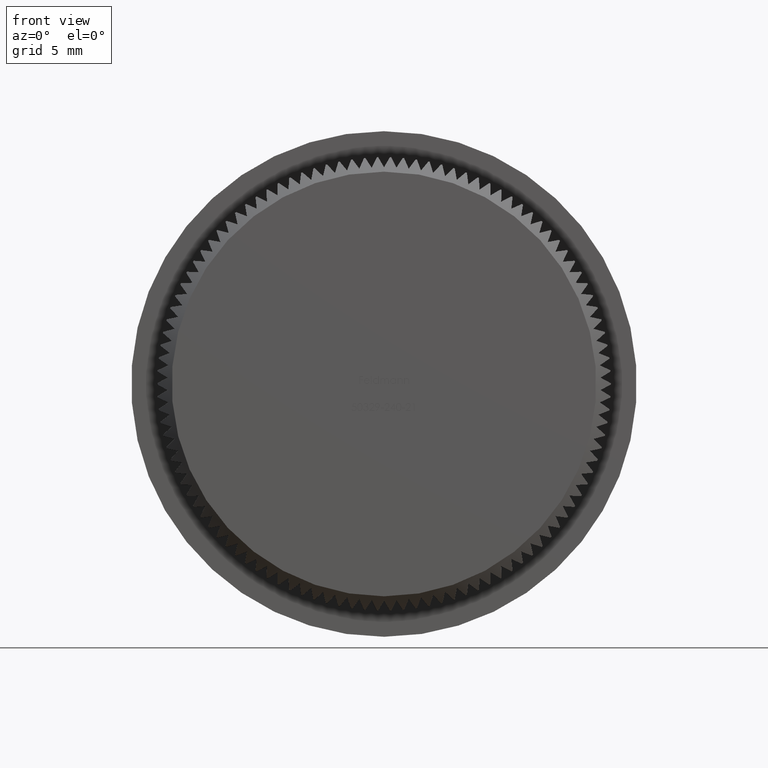
[diagram: clean part render]
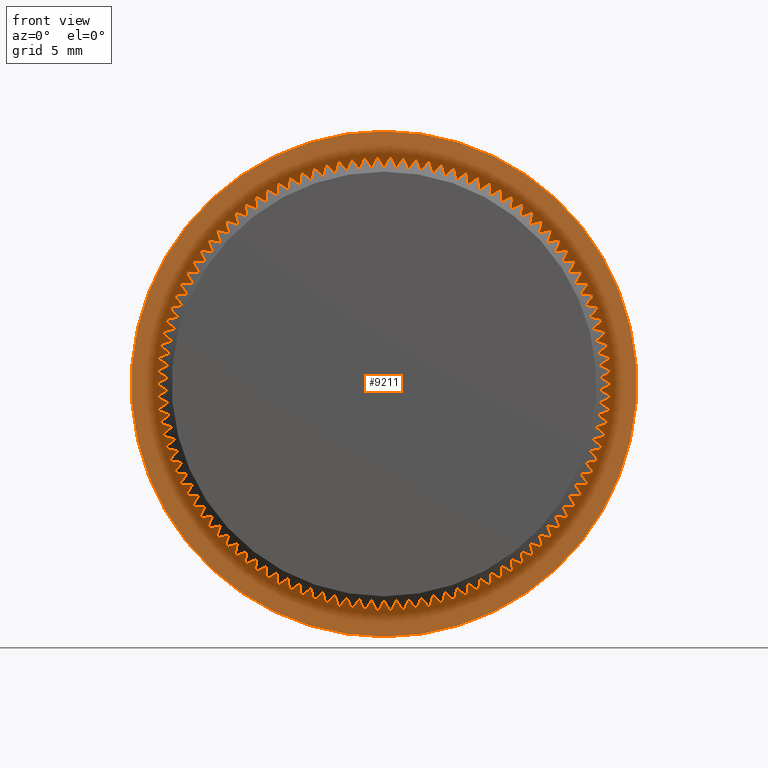
[diagram: same view with one face highlighted and labeled with its STEP entity id]
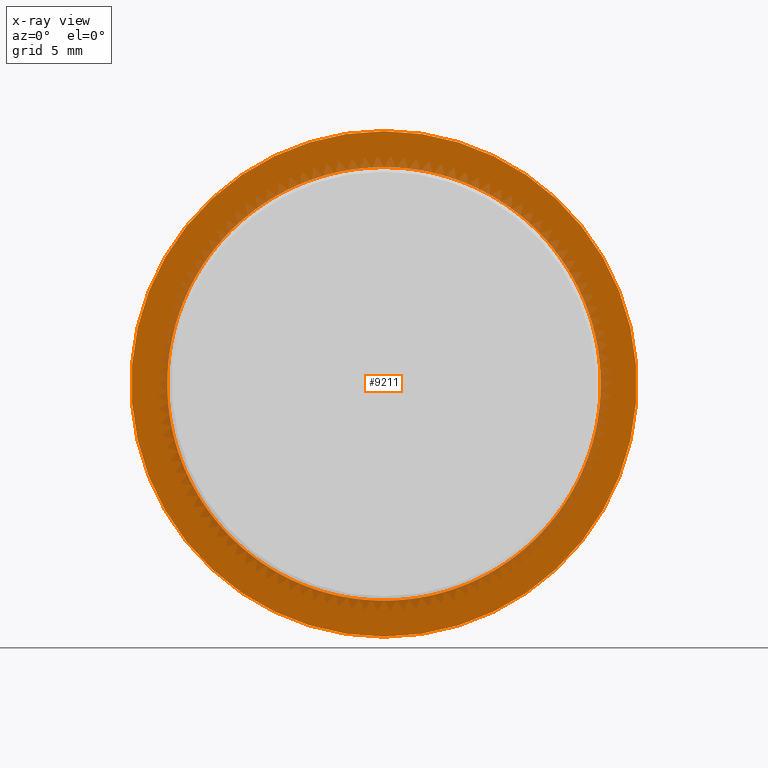
[diagram: x-ray of the same camera — body ghosted, the highlighted face saturated]
A machine part, front view. The second image highlights one B-rep face of the part: STEP entity #9211.
The next image is the same camera in x-ray: the body ghosted, the highlighted face saturated — about 15% of this face is hidden behind the body in this view.
In plain terms, the highlighted planar face has unit normal (0, -1, -0).
Its self-contained STEP definition (entity closure, byte-faithful):
#65 = CIRCLE ( 'NONE', #4644, 15.00000000000000000 ) ;
#75 = CARTESIAN_POINT ( 'NONE',  ( 0.0000000000000000000, 8.000000000000000000, 0.0000000000000000000 ) ) ;
#83 = DIRECTION ( 'NONE',  ( 0.0000000000000000000, 0.0000000000000000000, -1.000000000000000000 ) ) ;
#93 = AXIS2_PLACEMENT_3D ( 'NONE', #27439, #10124, #12365 ) ;
#94 = VERTEX_POINT ( 'NONE', #7247 ) ;
#106 = CARTESIAN_POINT ( 'NONE',  ( 0.0000000000000000000, 8.000000000000000000, 0.0000000000000000000 ) ) ;
#109 = DIRECTION ( 'NONE',  ( -0.0000000000000000000, -1.000000000000000000, -0.0000000000000000000 ) ) ;
#121 = EDGE_CURVE ( 'NONE', #16577, #16419, #65, .T. ) ;
#139 = CARTESIAN_POINT ( 'NONE',  ( 0.0000000000000000000, 8.000000000000000000, 0.0000000000000000000 ) ) ;
#153 = DIRECTION ( 'NONE',  ( -0.0000000000000000000, -1.000000000000000000, -0.0000000000000000000 ) ) ;
#155 = ORIENTED_EDGE ( 'NONE', *, *, #22793, .F. ) ;
#224 = DIRECTION ( 'NONE',  ( 0.0000000000000000000, 0.0000000000000000000, -1.000000000000000000 ) ) ;
#264 = AXIS2_PLACEMENT_3D ( 'NONE', #27004, #20917, #1320 ) ;
#284 = CARTESIAN_POINT ( 'NONE',  ( -12.38207845444162600, 8.000000000000000000, 8.466648283001511300 ) ) ;
#312 = CIRCLE ( 'NONE', #2868, 15.00000000000000000 ) ;
#317 = CARTESIAN_POINT ( 'NONE',  ( 8.816778784387196300, 8.000000000000000000, -12.13525491562413800 ) ) ;
#398 = DIRECTION ( 'NONE',  ( -0.0000000000000000000, -1.000000000000000000, -0.0000000000000000000 ) ) ;
#459 = DIRECTION ( 'NONE',  ( 0.0000000000000000000, 0.0000000000000000000, -1.000000000000000000 ) ) ;
#472 = ORIENTED_EDGE ( 'NONE', *, *, #2936, .F. ) ;
#478 = ORIENTED_EDGE ( 'NONE', *, *, #27478, .F. ) ;
#491 = AXIS2_PLACEMENT_3D ( 'NONE', #2112, #19181, #21429 ) ;
#530 = AXIS2_PLACEMENT_3D ( 'NONE', #21089, #12389, #25110 ) ;
#546 = CIRCLE ( 'NONE', #8760, 15.00000000000000000 ) ;
#549 = EDGE_CURVE ( 'NONE', #23976, #17939, #3739, .T. ) ;
#557 = CARTESIAN_POINT ( 'NONE',  ( -14.26584774442731900, 7.999999999999994700, 4.635254915624170900 ) ) ;
#619 = VERTEX_POINT ( 'NONE', #18628 ) ;
#656 = DIRECTION ( 'NONE',  ( -0.0000000000000000000, -1.000000000000000000, -0.0000000000000000000 ) ) ;
#741 = VERTEX_POINT ( 'NONE', #26846 ) ;
#795 = AXIS2_PLACEMENT_3D ( 'NONE', #6698, #23667, #13003 ) ;
#799 = AXIS2_PLACEMENT_3D ( 'NONE', #75, #2307, #2395 ) ;
#905 = DIRECTION ( 'NONE',  ( -0.0000000000000000000, -1.000000000000000000, -0.0000000000000000000 ) ) ;
#921 = CIRCLE ( 'NONE', #6379, 15.00000000000000000 ) ;
#945 = DIRECTION ( 'NONE',  ( 0.0000000000000000000, 0.0000000000000000000, -1.000000000000000000 ) ) ;
#981 = DIRECTION ( 'NONE',  ( 0.0000000000000000000, 0.0000000000000000000, -1.000000000000000000 ) ) ;
#988 = CARTESIAN_POINT ( 'NONE',  ( -14.70123841638588900, 7.999999999999998200, -2.978856999686240000 ) ) ;
#1043 = AXIS2_PLACEMENT_3D ( 'NONE', #4427, #6600, #19518 ) ;
#1092 = CARTESIAN_POINT ( 'NONE',  ( -10.14262350411030900, 8.000000000000000000, 11.05111706814605700 ) ) ;
#1093 = DIRECTION ( 'NONE',  ( 0.0000000000000000000, 0.0000000000000000000, -1.000000000000000000 ) ) ;
#1099 = ORIENTED_EDGE ( 'NONE', *, *, #2102, .F. ) ;
#1131 = CARTESIAN_POINT ( 'NONE',  ( 4.225988352621254100, 8.000000000000000000, 14.39239460421751800 ) ) ;
#1150 = EDGE_CURVE ( 'NONE', #5817, #11707, #3707, .T. ) ;
#1154 = ORIENTED_EDGE ( 'NONE', *, *, #9018, .F. ) ;
#1187 = CIRCLE ( 'NONE', #5462, 15.00000000000000000 ) ;
#1236 = AXIS2_PLACEMENT_3D ( 'NONE', #10860, #21434, #4651 ) ;
#1288 = AXIS2_PLACEMENT_3D ( 'NONE', #10973, #25663, #14908 ) ;
#1312 = EDGE_CURVE ( 'NONE', #10483, #18616, #19817, .T. ) ;
#1320 = DIRECTION ( 'NONE',  ( 0.0000000000000000000, 0.0000000000000000000, -1.000000000000000000 ) ) ;
#1323 = CIRCLE ( 'NONE', #9565, 15.00000000000000000 ) ;
#1325 = ORIENTED_EDGE ( 'NONE', *, *, #10430, .F. ) ;
#1327 = AXIS2_PLACEMENT_3D ( 'NONE', #9606, #2654, #18117 ) ;
#1357 = CARTESIAN_POINT ( 'NONE',  ( 0.0000000000000000000, 8.000000000000000000, 0.0000000000000000000 ) ) ;
#1395 = DIRECTION ( 'NONE',  ( -0.0000000000000000000, -1.000000000000000000, -0.0000000000000000000 ) ) ;
#1427 = DIRECTION ( 'NONE',  ( 0.0000000000000000000, 0.0000000000000000000, -1.000000000000000000 ) ) ;
#1501 = CARTESIAN_POINT ( 'NONE',  ( -8.816778784387114600, 7.999999999999991100, 12.13525491562420200 ) ) ;
#1524 = CARTESIAN_POINT ( 'NONE',  ( 0.0000000000000000000, 8.000000000000000000, 0.0000000000000000000 ) ) ;
#1654 = CARTESIAN_POINT ( 'NONE',  ( -13.26649396496718400, 8.000000000000000000, -7.000009848385164300 ) ) ;
#1660 = CARTESIAN_POINT ( 'NONE',  ( -8.109612261833893500, 8.000000000000000000, -12.61880299246776200 ) ) ;
#1702 = ORIENTED_EDGE ( 'NONE', *, *, #549, .F. ) ;
#1703 = AXIS2_PLACEMENT_3D ( 'NONE', #19227, #6397, #15026 ) ;
#1708 = CARTESIAN_POINT ( 'NONE',  ( 0.0000000000000000000, 8.000000000000000000, 0.0000000000000000000 ) ) ;
#1744 = CIRCLE ( 'NONE', #21007, 15.00000000000000000 ) ;
#1793 = DIRECTION ( 'NONE',  ( -0.0000000000000000000, -1.000000000000000000, -0.0000000000000000000 ) ) ;
#1797 = DIRECTION ( 'NONE',  ( -0.0000000000000000000, -1.000000000000000000, -0.0000000000000000000 ) ) ;
#1926 = VERTEX_POINT ( 'NONE', #3216 ) ;
#1951 = ORIENTED_EDGE ( 'NONE', *, *, #22975, .F. ) ;
#1955 = VERTEX_POINT ( 'NONE', #26639 ) ;
#1986 = EDGE_CURVE ( 'NONE', #5927, #18587, #21109, .T. ) ;
#1992 = ORIENTED_EDGE ( 'NONE', *, *, #1312, .F. ) ;
#2004 = AXIS2_PLACEMENT_3D ( 'NONE', #11797, #26779, #1093 ) ;
#2020 = CARTESIAN_POINT ( 'NONE',  ( 0.0000000000000000000, 8.000000000000000000, 0.0000000000000000000 ) ) ;
#2027 = CARTESIAN_POINT ( 'NONE',  ( 0.0000000000000000000, 8.000000000000000000, 0.0000000000000000000 ) ) ;
#2057 = DIRECTION ( 'NONE',  ( -0.0000000000000000000, -1.000000000000000000, -0.0000000000000000000 ) ) ;
#2082 = AXIS2_PLACEMENT_3D ( 'NONE', #14773, #1797, #21396 ) ;
#2099 = CARTESIAN_POINT ( 'NONE',  ( 0.0000000000000000000, 8.000000000000000000, 0.0000000000000000000 ) ) ;
#2102 = EDGE_CURVE ( 'NONE', #11823, #24498, #7371, .T. ) ;
#2112 = CARTESIAN_POINT ( 'NONE',  ( 0.0000000000000000000, 8.000000000000000000, 0.0000000000000000000 ) ) ;
#2140 = CARTESIAN_POINT ( 'NONE',  ( 0.0000000000000000000, 8.000000000000000000, 0.0000000000000000000 ) ) ;
#2145 = VERTEX_POINT ( 'NONE', #9992 ) ;
#2170 = DIRECTION ( 'NONE',  ( -0.0000000000000000000, -1.000000000000000000, -0.0000000000000000000 ) ) ;
#2188 = CIRCLE ( 'NONE', #16467, 15.00000000000000000 ) ;
#2204 = VERTEX_POINT ( 'NONE', #8842 ) ;
#2231 = DIRECTION ( 'NONE',  ( -0.0000000000000000000, -1.000000000000000000, -0.0000000000000000000 ) ) ;
#2251 = DIRECTION ( 'NONE',  ( 0.0000000000000000000, 0.0000000000000000000, -1.000000000000000000 ) ) ;
#2252 = AXIS2_PLACEMENT_3D ( 'NONE', #24567, #15963, #945 ) ;
#2283 = CARTESIAN_POINT ( 'NONE',  ( -4.225988352621453900, 8.000000000000000000, 14.39239460421745800 ) ) ;
#2285 = ORIENTED_EDGE ( 'NONE', *, *, #3928, .F. ) ;
#2287 = CIRCLE ( 'NONE', #9917, 15.00000000000000000 ) ;
#2293 = CARTESIAN_POINT ( 'NONE',  ( 0.0000000000000000000, 8.000000000000000000, 0.0000000000000000000 ) ) ;
#2303 = DIRECTION ( 'NONE',  ( -0.0000000000000000000, -1.000000000000000000, -0.0000000000000000000 ) ) ;
#2307 = DIRECTION ( 'NONE',  ( -0.0000000000000000000, -1.000000000000000000, -0.0000000000000000000 ) ) ;
#2327 = CARTESIAN_POINT ( 'NONE',  ( 0.8563321629416291700, 8.000000000000000000, -14.97553655889203000 ) ) ;
#2337 = AXIS2_PLACEMENT_3D ( 'NONE', #12892, #1793, #16928 ) ;
#2395 = DIRECTION ( 'NONE',  ( 0.0000000000000000000, 0.0000000000000000000, -1.000000000000000000 ) ) ;
#2418 = CIRCLE ( 'NONE', #12314, 15.00000000000000000 ) ;
#2457 = AXIS2_PLACEMENT_3D ( 'NONE', #20837, #8012, #14779 ) ;
#2524 = VERTEX_POINT ( 'NONE', #14550 ) ;
#2535 = DIRECTION ( 'NONE',  ( 0.0000000000000000000, 0.0000000000000000000, -1.000000000000000000 ) ) ;
#2600 = CARTESIAN_POINT ( 'NONE',  ( 0.0000000000000000000, 8.000000000000000000, 0.0000000000000000000 ) ) ;
#2616 = CARTESIAN_POINT ( 'NONE',  ( -10.75697707138447100, 8.000000000000007100, 10.45406352982938200 ) ) ;
#2622 = CARTESIAN_POINT ( 'NONE',  ( 0.0000000000000000000, 8.000000000000000000, 0.0000000000000000000 ) ) ;
#2632 = CARTESIAN_POINT ( 'NONE',  ( 0.0000000000000000000, 8.000000000000000000, -15.00000000000000000 ) ) ;
#2654 = DIRECTION ( 'NONE',  ( -0.0000000000000000000, -1.000000000000000000, -0.0000000000000000000 ) ) ;
#2662 = VERTEX_POINT ( 'NONE', #16446 ) ;
#2714 = CARTESIAN_POINT ( 'NONE',  ( 13.26649396496728400, 7.999999999999991100, -7.000009848384981300 ) ) ;
#2721 = ORIENTED_EDGE ( 'NONE', *, *, #11593, .T. ) ;
#2725 = EDGE_CURVE ( 'NONE', #25470, #9331, #2982, .T. ) ;
#2788 = ORIENTED_EDGE ( 'NONE', *, *, #13718, .F. ) ;
#2803 = DIRECTION ( 'NONE',  ( 0.0000000000000000000, 0.0000000000000000000, -1.000000000000000000 ) ) ;
#2819 = AXIS2_PLACEMENT_3D ( 'NONE', #19829, #21900, #9071 ) ;
#2851 = CIRCLE ( 'NONE', #6453, 15.00000000000000000 ) ;
#2868 = AXIS2_PLACEMENT_3D ( 'NONE', #18052, #20184, #26379 ) ;
#2936 = EDGE_CURVE ( 'NONE', #23331, #6551, #312, .T. ) ;
#2982 = CIRCLE ( 'NONE', #14391, 15.00000000000000000 ) ;
#2989 = AXIS2_PLACEMENT_3D ( 'NONE', #7903, #5479, #9799 ) ;
#3105 = VERTEX_POINT ( 'NONE', #3134 ) ;
#3128 = CARTESIAN_POINT ( 'NONE',  ( 0.0000000000000000000, 8.000000000000000000, 0.0000000000000000000 ) ) ;
#3134 = CARTESIAN_POINT ( 'NONE',  ( 13.97796043817172100, 8.000000000000000000, 5.442115580259777400 ) ) ;
#3148 = CARTESIAN_POINT ( 'NONE',  ( 0.0000000000000000000, 8.000000000000000000, 0.0000000000000000000 ) ) ;
#3155 = CIRCLE ( 'NONE', #6207, 15.00000000000000000 ) ;
#3192 = EDGE_CURVE ( 'NONE', #1955, #6501, #3991, .T. ) ;
#3194 = DIRECTION ( 'NONE',  ( -0.0000000000000000000, -1.000000000000000000, -0.0000000000000000000 ) ) ;
#3216 = CARTESIAN_POINT ( 'NONE',  ( 13.64447993031783600, 8.000000000000003600, -6.231225195028161000 ) ) ;
#3258 = EDGE_CURVE ( 'NONE', #1926, #6534, #25076, .T. ) ;
#3260 = VERTEX_POINT ( 'NONE', #21476 ) ;
#3279 = CARTESIAN_POINT ( 'NONE',  ( -8.816778784387027600, 8.000000000000000000, -12.13525491562426200 ) ) ;
#3357 = ORIENTED_EDGE ( 'NONE', *, *, #1986, .F. ) ;
#3383 = ORIENTED_EDGE ( 'NONE', *, *, #3787, .F. ) ;
#3393 = AXIS2_PLACEMENT_3D ( 'NONE', #8675, #25430, #27692 ) ;
#3404 = CARTESIAN_POINT ( 'NONE',  ( 0.0000000000000000000, 8.000000000000000000, 0.0000000000000000000 ) ) ;
#3408 = VERTEX_POINT ( 'NONE', #21557 ) ;
#3414 = EDGE_CURVE ( 'NONE', #8747, #3105, #2287, .T. ) ;
#3432 = VERTEX_POINT ( 'NONE', #2714 ) ;
#3444 = CIRCLE ( 'NONE', #24936, 15.00000000000000000 ) ;
#3500 = DIRECTION ( 'NONE',  ( -0.0000000000000000000, -1.000000000000000000, -0.0000000000000000000 ) ) ;
#3523 = CARTESIAN_POINT ( 'NONE',  ( 0.0000000000000000000, 8.000000000000000000, 0.0000000000000000000 ) ) ;
#3569 = CARTESIAN_POINT ( 'NONE',  ( -14.70123841638591200, 7.999999999999994700, 2.978856999686137800 ) ) ;
#3595 = DIRECTION ( 'NONE',  ( -0.0000000000000000000, -1.000000000000000000, -0.0000000000000000000 ) ) ;
#3643 = ORIENTED_EDGE ( 'NONE', *, *, #10510, .F. ) ;
#3653 = ORIENTED_EDGE ( 'NONE', *, *, #20704, .F. ) ;
#3654 = CIRCLE ( 'NONE', #21045, 15.00000000000000000 ) ;
#3707 = CIRCLE ( 'NONE', #9327, 15.00000000000000000 ) ;
#3739 = CIRCLE ( 'NONE', #8962, 15.00000000000000000 ) ;
#3787 = EDGE_CURVE ( 'NONE', #11707, #7302, #26749, .T. ) ;
#3811 = CIRCLE ( 'NONE', #4923, 15.00000000000000000 ) ;
#3855 = DIRECTION ( 'NONE',  ( -0.0000000000000000000, -1.000000000000000000, -0.0000000000000000000 ) ) ;
#3862 = VERTEX_POINT ( 'NONE', #15700 ) ;
#3879 = CARTESIAN_POINT ( 'NONE',  ( 0.0000000000000000000, 8.000000000000000000, 0.0000000000000000000 ) ) ;
#3900 = AXIS2_PLACEMENT_3D ( 'NONE', #3879, #12518, #16842 ) ;
#3928 = EDGE_CURVE ( 'NONE', #12234, #11717, #4283, .T. ) ;
#3930 = CIRCLE ( 'NONE', #17304, 15.00000000000000000 ) ;
#3947 = DIRECTION ( 'NONE',  ( -0.0000000000000000000, -1.000000000000000000, -0.0000000000000000000 ) ) ;
#3948 = CARTESIAN_POINT ( 'NONE',  ( 0.0000000000000000000, 8.000000000000000000, 0.0000000000000000000 ) ) ;
#3969 = EDGE_CURVE ( 'NONE', #3105, #20140, #12354, .T. ) ;
#3991 = CIRCLE ( 'NONE', #18517, 15.00000000000000000 ) ;
#4006 = DIRECTION ( 'NONE',  ( -0.0000000000000000000, -1.000000000000000000, -0.0000000000000000000 ) ) ;
#4010 = DIRECTION ( 'NONE',  ( -0.0000000000000000000, -1.000000000000000000, -0.0000000000000000000 ) ) ;
#4026 = AXIS2_PLACEMENT_3D ( 'NONE', #20602, #27255, #14070 ) ;
#4083 = EDGE_LOOP ( 'NONE', ( #16895, #21912, #11115, #22925, #1154, #12791, #17118, #6471, #27479, #1992, #14184, #26386, #20068, #20006, #10265, #16776, #4115, #5539, #18205, #22700, #4687, #26801, #9775, #155, #26697, #15152, #1325, #21591, #22223, #25102, #3357, #18958, #12763, #16672, #16217, #23205, #15639, #9168, #6807, #25969, #18226, #7278, #5240, #8253, #15281, #17075, #25565, #9039, #9119, #11027, #3653, #472, #10304, #6481, #2788, #7492, #3383, #25847, #10217, #2285, #21645, #7873, #14056, #14080, #9638, #8778, #19628, #25796, #10319, #17277, #1951, #7997, #23794, #22726, #22541, #478, #9460, #23463, #13394, #14892, #12542, #21340, #4174, #12908, #16028, #24538, #14672, #20098, #1702, #3643, #4459, #16861, #12993, #27196, #9952, #17447, #22696, #12494, #22490, #13071, #9415, #17565, #24879, #20980, #8370, #10625, #7624, #1099, #26315, #21514 ) ) ;
#4114 = VERTEX_POINT ( 'NONE', #8103 ) ;
#4115 = ORIENTED_EDGE ( 'NONE', *, *, #8035, .F. ) ;
#4142 = VERTEX_POINT ( 'NONE', #10927 ) ;
#4161 = CARTESIAN_POINT ( 'NONE',  ( -5.040740898231462100, 7.999999999999998200, 14.12766545459286900 ) ) ;
#4174 = ORIENTED_EDGE ( 'NONE', *, *, #24624, .F. ) ;
#4189 = DIRECTION ( 'NONE',  ( -0.0000000000000000000, -1.000000000000000000, -0.0000000000000000000 ) ) ;
#4261 = DIRECTION ( 'NONE',  ( -0.0000000000000000000, -1.000000000000000000, -0.0000000000000000000 ) ) ;
#4267 = DIRECTION ( 'NONE',  ( 0.0000000000000000000, 0.0000000000000000000, -1.000000000000000000 ) ) ;
#4270 = DIRECTION ( 'NONE',  ( -0.0000000000000000000, -1.000000000000000000, -0.0000000000000000000 ) ) ;
#4280 = CARTESIAN_POINT ( 'NONE',  ( 0.0000000000000000000, 8.000000000000000000, 0.0000000000000000000 ) ) ;
#4283 = CIRCLE ( 'NONE', #23742, 15.00000000000000000 ) ;
#4291 = CARTESIAN_POINT ( 'NONE',  ( -9.495186807132993700, 8.000000000000003600, -11.61212415958628700 ) ) ;
#4330 = EDGE_CURVE ( 'NONE', #6352, #11648, #23739, .T. ) ;
#4365 = DIRECTION ( 'NONE',  ( 0.0000000000000000000, 0.0000000000000000000, -1.000000000000000000 ) ) ;
#4402 = DIRECTION ( 'NONE',  ( 0.0000000000000000000, 0.0000000000000000000, -1.000000000000000000 ) ) ;
#4422 = CARTESIAN_POINT ( 'NONE',  ( 0.0000000000000000000, 8.000000000000000000, 0.0000000000000000000 ) ) ;
#4427 = CARTESIAN_POINT ( 'NONE',  ( 0.0000000000000000000, 8.000000000000000000, 0.0000000000000000000 ) ) ;
#4457 = VERTEX_POINT ( 'NONE', #25107 ) ;
#4459 = ORIENTED_EDGE ( 'NONE', *, *, #8575, .F. ) ;
#4460 = CIRCLE ( 'NONE', #26294, 15.00000000000000000 ) ;
#4471 = CIRCLE ( 'NONE', #2457, 15.00000000000000000 ) ;
#4498 = DIRECTION ( 'NONE',  ( 0.0000000000000000000, 0.0000000000000000000, -1.000000000000000000 ) ) ;
#4512 = AXIS2_PLACEMENT_3D ( 'NONE', #14112, #3500, #1427 ) ;
#4518 = DIRECTION ( 'NONE',  ( -0.0000000000000000000, -1.000000000000000000, -0.0000000000000000000 ) ) ;
#4569 = VERTEX_POINT ( 'NONE', #18852 ) ;
#4575 = DIRECTION ( 'NONE',  ( -0.0000000000000000000, -1.000000000000000000, -0.0000000000000000000 ) ) ;
#4644 = AXIS2_PLACEMENT_3D ( 'NONE', #26267, #26357, #9507 ) ;
#4651 = DIRECTION ( 'NONE',  ( 0.0000000000000000000, 0.0000000000000000000, -1.000000000000000000 ) ) ;
#4657 = CARTESIAN_POINT ( 'NONE',  ( 0.0000000000000000000, 8.000000000000000000, 0.0000000000000000000 ) ) ;
#4668 = DIRECTION ( 'NONE',  ( 0.0000000000000000000, 0.0000000000000000000, -1.000000000000000000 ) ) ;
#4687 = ORIENTED_EDGE ( 'NONE', *, *, #19730, .F. ) ;
#4691 = CARTESIAN_POINT ( 'NONE',  ( 0.0000000000000000000, 8.000000000000000000, 0.0000000000000000000 ) ) ;
#4793 = CIRCLE ( 'NONE', #795, 15.00000000000000000 ) ;
#4812 = CARTESIAN_POINT ( 'NONE',  ( -11.87853368883408000, 8.000000000000000000, -9.159718194531631500 ) ) ;
#4829 = EDGE_CURVE ( 'NONE', #6534, #4142, #14002, .T. ) ;
#4923 = AXIS2_PLACEMENT_3D ( 'NONE', #13525, #905, #20043 ) ;
#4940 = DIRECTION ( 'NONE',  ( -0.0000000000000000000, -1.000000000000000000, -0.0000000000000000000 ) ) ;
#4966 = AXIS2_PLACEMENT_3D ( 'NONE', #17959, #15624, #26201 ) ;
#4976 = DIRECTION ( 'NONE',  ( 0.0000000000000000000, 0.0000000000000000000, -1.000000000000000000 ) ) ;
#5004 = AXIS2_PLACEMENT_3D ( 'NONE', #19483, #19758, #6832 ) ;
#5062 = DIRECTION ( 'NONE',  ( 0.0000000000000000000, 0.0000000000000000000, -1.000000000000000000 ) ) ;
#5074 = CARTESIAN_POINT ( 'NONE',  ( 0.0000000000000000000, 8.000000000000000000, 0.0000000000000000000 ) ) ;
#5092 = AXIS2_PLACEMENT_3D ( 'NONE', #21071, #6277, #10419 ) ;
#5111 = CIRCLE ( 'NONE', #11605, 15.00000000000000000 ) ;
#5154 = EDGE_CURVE ( 'NONE', #16383, #11823, #5933, .T. ) ;
#5179 = DIRECTION ( 'NONE',  ( -0.0000000000000000000, -1.000000000000000000, -0.0000000000000000000 ) ) ;
#5185 = CARTESIAN_POINT ( 'NONE',  ( 10.75697707138454500, 8.000000000000000000, -10.45406352982930700 ) ) ;
#5192 = CIRCLE ( 'NONE', #93, 15.00000000000000000 ) ;
#5240 = ORIENTED_EDGE ( 'NONE', *, *, #11244, .F. ) ;
#5288 = VERTEX_POINT ( 'NONE', #27080 ) ;
#5297 = CARTESIAN_POINT ( 'NONE',  ( 0.0000000000000000000, 8.000000000000000000, 0.0000000000000000000 ) ) ;
#5323 = CARTESIAN_POINT ( 'NONE',  ( -9.495186807133073600, 8.000000000000000000, 11.61212415958622300 ) ) ;
#5337 = AXIS2_PLACEMENT_3D ( 'NONE', #5297, #7355, #24404 ) ;
#5341 = CARTESIAN_POINT ( 'NONE',  ( -2.557832889489261200, 8.000000000000000000, -14.78030753771541200 ) ) ;
#5371 = AXIS2_PLACEMENT_3D ( 'NONE', #16045, #3194, #13735 ) ;
#5384 = CARTESIAN_POINT ( 'NONE',  ( 0.0000000000000000000, 8.000000000000000000, 0.0000000000000000000 ) ) ;
#5462 = AXIS2_PLACEMENT_3D ( 'NONE', #3148, #20293, #26944 ) ;
#5479 = DIRECTION ( 'NONE',  ( -0.0000000000000000000, -1.000000000000000000, -0.0000000000000000000 ) ) ;
#5504 = CIRCLE ( 'NONE', #5337, 15.00000000000000000 ) ;
#5539 = ORIENTED_EDGE ( 'NONE', *, *, #9644, .F. ) ;
#5575 = EDGE_CURVE ( 'NONE', #4142, #24853, #17982, .T. ) ;
#5581 = DIRECTION ( 'NONE',  ( -0.0000000000000000000, -1.000000000000000000, -0.0000000000000000000 ) ) ;
#5637 = VERTEX_POINT ( 'NONE', #7109 ) ;
#5641 = CIRCLE ( 'NONE', #15720, 15.00000000000000000 ) ;
#5705 = CARTESIAN_POINT ( 'NONE',  ( 0.0000000000000000000, 8.000000000000000000, 0.0000000000000000000 ) ) ;
#5808 = CARTESIAN_POINT ( 'NONE',  ( -13.97796043817179900, 8.000000000000003600, 5.442115580259576600 ) ) ;
#5817 = VERTEX_POINT ( 'NONE', #22651 ) ;
#5846 = CIRCLE ( 'NONE', #16818, 15.00000000000000000 ) ;
#5927 = VERTEX_POINT ( 'NONE', #16486 ) ;
#5933 = CIRCLE ( 'NONE', #13539, 15.00000000000000000 ) ;
#6047 = AXIS2_PLACEMENT_3D ( 'NONE', #2020, #4189, #21146 ) ;
#6102 = DIRECTION ( 'NONE',  ( -0.0000000000000000000, -1.000000000000000000, -0.0000000000000000000 ) ) ;
#6123 = CARTESIAN_POINT ( 'NONE',  ( 0.0000000000000000000, 8.000000000000000000, -17.50000000000000000 ) ) ;
#6154 = CIRCLE ( 'NONE', #26373, 15.00000000000000000 ) ;
#6165 = DIRECTION ( 'NONE',  ( 0.0000000000000000000, 0.0000000000000000000, -1.000000000000000000 ) ) ;
#6167 = VERTEX_POINT ( 'NONE', #16088 ) ;
#6207 = AXIS2_PLACEMENT_3D ( 'NONE', #14992, #25841, #83 ) ;
#6209 = CIRCLE ( 'NONE', #26705, 15.00000000000000000 ) ;
#6212 = AXIS2_PLACEMENT_3D ( 'NONE', #12449, #23119, #6165 ) ;
#6213 = CARTESIAN_POINT ( 'NONE',  ( 0.0000000000000000000, 8.000000000000000000, 0.0000000000000000000 ) ) ;
#6277 = DIRECTION ( 'NONE',  ( -0.0000000000000000000, -1.000000000000000000, -0.0000000000000000000 ) ) ;
#6352 = VERTEX_POINT ( 'NONE', #27315 ) ;
#6354 = EDGE_CURVE ( 'NONE', #22443, #4457, #18340, .T. ) ;
#6367 = CARTESIAN_POINT ( 'NONE',  ( 9.495186807132908400, 7.999999999999994700, 11.61212415958636000 ) ) ;
#6379 = AXIS2_PLACEMENT_3D ( 'NONE', #15889, #11849, #22246 ) ;
#6397 = DIRECTION ( 'NONE',  ( -0.0000000000000000000, -1.000000000000000000, -0.0000000000000000000 ) ) ;
#6403 = DIRECTION ( 'NONE',  ( -0.0000000000000000000, -1.000000000000000000, -0.0000000000000000000 ) ) ;
#6453 = AXIS2_PLACEMENT_3D ( 'NONE', #17221, #4270, #23680 ) ;
#6471 = ORIENTED_EDGE ( 'NONE', *, *, #18210, .F. ) ;
#6481 = ORIENTED_EDGE ( 'NONE', *, *, #16806, .F. ) ;
#6489 = CARTESIAN_POINT ( 'NONE',  ( 0.0000000000000000000, 8.000000000000000000, 0.0000000000000000000 ) ) ;
#6501 = VERTEX_POINT ( 'NONE', #15928 ) ;
#6524 = EDGE_CURVE ( 'NONE', #26114, #23331, #3930, .T. ) ;
#6534 = VERTEX_POINT ( 'NONE', #17808 ) ;
#6544 = AXIS2_PLACEMENT_3D ( 'NONE', #21630, #4575, #11068 ) ;
#6551 = VERTEX_POINT ( 'NONE', #20689 ) ;
#6587 = DIRECTION ( 'NONE',  ( -0.0000000000000000000, -1.000000000000000000, -0.0000000000000000000 ) ) ;
#6600 = DIRECTION ( 'NONE',  ( -0.0000000000000000000, -1.000000000000000000, -0.0000000000000000000 ) ) ;
#6672 = DIRECTION ( 'NONE',  ( -0.0000000000000000000, -1.000000000000000000, -0.0000000000000000000 ) ) ;
#6692 = CARTESIAN_POINT ( 'NONE',  ( -14.50720282052934400, 7.999999999999998200, -3.813275012902362300 ) ) ;
#6698 = CARTESIAN_POINT ( 'NONE',  ( 0.0000000000000000000, 8.000000000000000000, 0.0000000000000000000 ) ) ;
#6731 = DIRECTION ( 'NONE',  ( 0.0000000000000000000, 0.0000000000000000000, -1.000000000000000000 ) ) ;
#6764 = EDGE_CURVE ( 'NONE', #27799, #5927, #26365, .T. ) ;
#6807 = ORIENTED_EDGE ( 'NONE', *, *, #20959, .F. ) ;
#6832 = DIRECTION ( 'NONE',  ( 0.0000000000000000000, 0.0000000000000000000, -1.000000000000000000 ) ) ;
#6842 = EDGE_CURVE ( 'NONE', #20693, #12234, #27038, .T. ) ;
#6877 = DIRECTION ( 'NONE',  ( -0.0000000000000000000, -1.000000000000000000, -0.0000000000000000000 ) ) ;
#6998 = VERTEX_POINT ( 'NONE', #22630 ) ;
#7056 = AXIS2_PLACEMENT_3D ( 'NONE', #21846, #6587, #17639 ) ;
#7078 = EDGE_CURVE ( 'NONE', #10273, #13791, #8944, .T. ) ;
#7081 = CARTESIAN_POINT ( 'NONE',  ( 0.0000000000000000000, 8.000000000000000000, 0.0000000000000000000 ) ) ;
#7086 = CARTESIAN_POINT ( 'NONE',  ( 10.14262350411038600, 8.000000000000003600, -11.05111706814598600 ) ) ;
#7109 = CARTESIAN_POINT ( 'NONE',  ( 1.709871148358216300, 7.999999999999998200, -14.90222603022824200 ) ) ;
#7140 = VERTEX_POINT ( 'NONE', #16731 ) ;
#7167 = VERTEX_POINT ( 'NONE', #6123 ) ;
#7175 = DIRECTION ( 'NONE',  ( -0.0000000000000000000, -1.000000000000000000, -0.0000000000000000000 ) ) ;
#7240 = CIRCLE ( 'NONE', #12533, 15.00000000000000000 ) ;
#7247 = CARTESIAN_POINT ( 'NONE',  ( -10.14262350411023100, 8.000000000000000000, -11.05111706814612800 ) ) ;
#7262 = AXIS2_PLACEMENT_3D ( 'NONE', #16651, #10088, #25049 ) ;
#7278 = ORIENTED_EDGE ( 'NONE', *, *, #21780, .F. ) ;
#7280 = CARTESIAN_POINT ( 'NONE',  ( 0.0000000000000000000, 8.000000000000000000, 0.0000000000000000000 ) ) ;
#7302 = VERTEX_POINT ( 'NONE', #2632 ) ;
#7328 = CARTESIAN_POINT ( 'NONE',  ( -7.375993869683979300, 7.999999999999998200, -13.06119115679670300 ) ) ;
#7355 = DIRECTION ( 'NONE',  ( -0.0000000000000000000, -1.000000000000000000, -0.0000000000000000000 ) ) ;
#7371 = CIRCLE ( 'NONE', #2337, 15.00000000000000000 ) ;
#7431 = CIRCLE ( 'NONE', #23363, 15.00000000000000000 ) ;
#7491 = EDGE_CURVE ( 'NONE', #94, #9068, #15947, .T. ) ;
#7492 = ORIENTED_EDGE ( 'NONE', *, *, #21526, .F. ) ;
#7570 = EDGE_CURVE ( 'NONE', #11569, #7586, #27340, .T. ) ;
#7586 = VERTEX_POINT ( 'NONE', #10325 ) ;
#7616 = EDGE_CURVE ( 'NONE', #17137, #22010, #23352, .T. ) ;
#7624 = ORIENTED_EDGE ( 'NONE', *, *, #20866, .F. ) ;
#7699 = EDGE_CURVE ( 'NONE', #619, #8891, #17659, .T. ) ;
#7734 = VERTEX_POINT ( 'NONE', #22445 ) ;
#7767 = EDGE_CURVE ( 'NONE', #19286, #16577, #1187, .T. ) ;
#7798 = CARTESIAN_POINT ( 'NONE',  ( -5.040740898231360800, 8.000000000000000000, -14.12766545459290200 ) ) ;
#7837 = AXIS2_PLACEMENT_3D ( 'NONE', #21619, #12936, #10964 ) ;
#7865 = CARTESIAN_POINT ( 'NONE',  ( -4.225988352621354400, 8.000000000000007100, -14.39239460421748600 ) ) ;
#7873 = ORIENTED_EDGE ( 'NONE', *, *, #12165, .F. ) ;
#7903 = CARTESIAN_POINT ( 'NONE',  ( 0.0000000000000000000, 8.000000000000000000, 0.0000000000000000000 ) ) ;
#7910 = CARTESIAN_POINT ( 'NONE',  ( 0.0000000000000000000, 8.000000000000000000, 0.0000000000000000000 ) ) ;
#7968 = CARTESIAN_POINT ( 'NONE',  ( -11.33624361531389400, 8.000000000000000000, 9.822911009179254200 ) ) ;
#7997 = ORIENTED_EDGE ( 'NONE', *, *, #16800, .F. ) ;
#8012 = DIRECTION ( 'NONE',  ( -0.0000000000000000000, -1.000000000000000000, -0.0000000000000000000 ) ) ;
#8035 = EDGE_CURVE ( 'NONE', #6167, #11501, #25660, .T. ) ;
#8072 = DIRECTION ( 'NONE',  ( 0.0000000000000000000, 0.0000000000000000000, -1.000000000000000000 ) ) ;
#8103 = CARTESIAN_POINT ( 'NONE',  ( 12.84523545377374500, 8.000000000000000000, 7.745961924584579000 ) ) ;
#8114 = CARTESIAN_POINT ( 'NONE',  ( 2.143131898507868200E-015, 8.000000000000000000, 17.50000000000000000 ) ) ;
#8120 = AXIS2_PLACEMENT_3D ( 'NONE', #106, #10523, #21548 ) ;
#8212 = DIRECTION ( 'NONE',  ( 0.0000000000000000000, -1.000000000000000000, -0.0000000000000000000 ) ) ;
#8232 = VERTEX_POINT ( 'NONE', #26508 ) ;
#8246 = CIRCLE ( 'NONE', #13811, 15.00000000000000000 ) ;
#8253 = ORIENTED_EDGE ( 'NONE', *, *, #13400, .F. ) ;
#8303 = CARTESIAN_POINT ( 'NONE',  ( 8.109612261834071100, 7.999999999999998200, -12.61880299246765000 ) ) ;
#8370 = ORIENTED_EDGE ( 'NONE', *, *, #22833, .F. ) ;
#8396 = CARTESIAN_POINT ( 'NONE',  ( 0.0000000000000000000, 8.000000000000000000, 0.0000000000000000000 ) ) ;
#8511 = AXIS2_PLACEMENT_3D ( 'NONE', #21833, #23727, #2251 ) ;
#8555 = CARTESIAN_POINT ( 'NONE',  ( 14.99388289242283400, 8.000000000000003600, 0.4283407619056032700 ) ) ;
#8572 = DIRECTION ( 'NONE',  ( 0.0000000000000000000, 0.0000000000000000000, -1.000000000000000000 ) ) ;
#8575 = EDGE_CURVE ( 'NONE', #741, #11854, #23295, .T. ) ;
#8596 = CARTESIAN_POINT ( 'NONE',  ( -14.26584774442728300, 8.000000000000003600, -4.635254915624271300 ) ) ;
#8629 = CARTESIAN_POINT ( 'NONE',  ( 14.94497596294038300, 8.000000000000000000, -1.283625127182446600 ) ) ;
#8675 = CARTESIAN_POINT ( 'NONE',  ( 0.0000000000000000000, 8.000000000000000000, 0.0000000000000000000 ) ) ;
#8736 = CARTESIAN_POINT ( 'NONE',  ( 0.0000000000000000000, 8.000000000000000000, 0.0000000000000000000 ) ) ;
#8745 = CARTESIAN_POINT ( 'NONE',  ( 0.0000000000000000000, 8.000000000000000000, 0.0000000000000000000 ) ) ;
#8747 = VERTEX_POINT ( 'NONE', #15246 ) ;
#8760 = AXIS2_PLACEMENT_3D ( 'NONE', #2027, #4006, #19013 ) ;
#8764 = CARTESIAN_POINT ( 'NONE',  ( -14.50720282052936800, 7.999999999999998200, 3.813275012902261500 ) ) ;
#8778 = ORIENTED_EDGE ( 'NONE', *, *, #9025, .F. ) ;
#8842 = CARTESIAN_POINT ( 'NONE',  ( -14.94497596294037400, 8.000000000000003600, 1.283625127182547800 ) ) ;
#8847 = CARTESIAN_POINT ( 'NONE',  ( 0.0000000000000000000, 8.000000000000000000, 0.0000000000000000000 ) ) ;
#8877 = DIRECTION ( 'NONE',  ( 0.0000000000000000000, 0.0000000000000000000, -1.000000000000000000 ) ) ;
#8891 = VERTEX_POINT ( 'NONE', #1131 ) ;
#8944 = CIRCLE ( 'NONE', #25742, 15.00000000000000000 ) ;
#8962 = AXIS2_PLACEMENT_3D ( 'NONE', #7280, #18062, #981 ) ;
#8972 = VERTEX_POINT ( 'NONE', #1660 ) ;
#8975 = DIRECTION ( 'NONE',  ( 0.0000000000000000000, 0.0000000000000000000, -1.000000000000000000 ) ) ;
#9003 = CARTESIAN_POINT ( 'NONE',  ( 2.557832889489467700, 8.000000000000003600, -14.78030753771537500 ) ) ;
#9018 = EDGE_CURVE ( 'NONE', #26812, #18748, #5192, .T. ) ;
#9025 = EDGE_CURVE ( 'NONE', #8972, #18047, #10245, .T. ) ;
#9039 = ORIENTED_EDGE ( 'NONE', *, *, #19040, .F. ) ;
#9041 = DIRECTION ( 'NONE',  ( 0.0000000000000000000, 0.0000000000000000000, -1.000000000000000000 ) ) ;
#9067 = EDGE_CURVE ( 'NONE', #25805, #13410, #3155, .T. ) ;
#9068 = VERTEX_POINT ( 'NONE', #4291 ) ;
#9071 = DIRECTION ( 'NONE',  ( 0.0000000000000000000, 0.0000000000000000000, -1.000000000000000000 ) ) ;
#9075 = CIRCLE ( 'NONE', #14422, 15.00000000000000000 ) ;
#9119 = ORIENTED_EDGE ( 'NONE', *, *, #3192, .F. ) ;
#9135 = CARTESIAN_POINT ( 'NONE',  ( 0.0000000000000000000, 8.000000000000000000, 0.0000000000000000000 ) ) ;
#9168 = ORIENTED_EDGE ( 'NONE', *, *, #14991, .F. ) ;
#9211 = ADVANCED_FACE ( 'NONE', ( #24273, #20579 ), #27607, .T. ) ;
#9242 = AXIS2_PLACEMENT_3D ( 'NONE', #1357, #22935, #20676 ) ;
#9278 = AXIS2_PLACEMENT_3D ( 'NONE', #3404, #5581, #20926 ) ;
#9327 = AXIS2_PLACEMENT_3D ( 'NONE', #1708, #10277, #16743 ) ;
#9331 = VERTEX_POINT ( 'NONE', #7798 ) ;
#9337 = CARTESIAN_POINT ( 'NONE',  ( 0.0000000000000000000, 8.000000000000000000, 0.0000000000000000000 ) ) ;
#9359 = AXIS2_PLACEMENT_3D ( 'NONE', #5074, #9483, #22299 ) ;
#9385 = EDGE_CURVE ( 'NONE', #9636, #2662, #5846, .T. ) ;
#9401 = CARTESIAN_POINT ( 'NONE',  ( 0.0000000000000000000, 8.000000000000000000, 0.0000000000000000000 ) ) ;
#9415 = ORIENTED_EDGE ( 'NONE', *, *, #26807, .F. ) ;
#9460 = ORIENTED_EDGE ( 'NONE', *, *, #6354, .F. ) ;
#9483 = DIRECTION ( 'NONE',  ( -0.0000000000000000000, -1.000000000000000000, -0.0000000000000000000 ) ) ;
#9507 = DIRECTION ( 'NONE',  ( 0.0000000000000000000, 0.0000000000000000000, -1.000000000000000000 ) ) ;
#9509 = EDGE_CURVE ( 'NONE', #24853, #27799, #3811, .T. ) ;
#9517 = CARTESIAN_POINT ( 'NONE',  ( 0.0000000000000000000, 8.000000000000000000, 0.0000000000000000000 ) ) ;
#9565 = AXIS2_PLACEMENT_3D ( 'NONE', #14462, #16616, #16520 ) ;
#9606 = CARTESIAN_POINT ( 'NONE',  ( 0.0000000000000000000, 8.000000000000000000, 0.0000000000000000000 ) ) ;
#9615 = AXIS2_PLACEMENT_3D ( 'NONE', #10388, #8212, #23298 ) ;
#9624 = CIRCLE ( 'NONE', #14338, 15.00000000000000000 ) ;
#9636 = VERTEX_POINT ( 'NONE', #8555 ) ;
#9638 = ORIENTED_EDGE ( 'NONE', *, *, #23214, .F. ) ;
#9644 = EDGE_CURVE ( 'NONE', #11204, #6167, #18234, .T. ) ;
#9664 = AXIS2_PLACEMENT_3D ( 'NONE', #1524, #20646, #22810 ) ;
#9668 = CARTESIAN_POINT ( 'NONE',  ( 0.0000000000000000000, 8.000000000000000000, 0.0000000000000000000 ) ) ;
#9710 = CARTESIAN_POINT ( 'NONE',  ( 14.70123841638593000, 8.000000000000000000, -2.978856999686031200 ) ) ;
#9725 = EDGE_CURVE ( 'NONE', #17580, #8972, #18567, .T. ) ;
#9775 = ORIENTED_EDGE ( 'NONE', *, *, #3414, .F. ) ;
#9799 = DIRECTION ( 'NONE',  ( 0.0000000000000000000, 0.0000000000000000000, -1.000000000000000000 ) ) ;
#9897 = VERTEX_POINT ( 'NONE', #18168 ) ;
#9917 = AXIS2_PLACEMENT_3D ( 'NONE', #11259, #13519, #21925 ) ;
#9952 = ORIENTED_EDGE ( 'NONE', *, *, #23171, .F. ) ;
#9992 = CARTESIAN_POINT ( 'NONE',  ( -7.375993869684072600, 7.999999999999991100, 13.06119115679665100 ) ) ;
#10017 = EDGE_CURVE ( 'NONE', #20745, #9897, #4460, .T. ) ;
#10028 = CARTESIAN_POINT ( 'NONE',  ( 14.50720282052939500, 8.000000000000000000, -3.813275012902159800 ) ) ;
#10088 = DIRECTION ( 'NONE',  ( -0.0000000000000000000, -1.000000000000000000, -0.0000000000000000000 ) ) ;
#10124 = DIRECTION ( 'NONE',  ( -0.0000000000000000000, -1.000000000000000000, -0.0000000000000000000 ) ) ;
#10203 = AXIS2_PLACEMENT_3D ( 'NONE', #3128, #24581, #11664 ) ;
#10217 = ORIENTED_EDGE ( 'NONE', *, *, #12598, .F. ) ;
#10245 = CIRCLE ( 'NONE', #23069, 15.00000000000000000 ) ;
#10265 = ORIENTED_EDGE ( 'NONE', *, *, #24308, .F. ) ;
#10273 = VERTEX_POINT ( 'NONE', #8303 ) ;
#10277 = DIRECTION ( 'NONE',  ( -0.0000000000000000000, -1.000000000000000000, -0.0000000000000000000 ) ) ;
#10304 = ORIENTED_EDGE ( 'NONE', *, *, #6524, .F. ) ;
#10319 = ORIENTED_EDGE ( 'NONE', *, *, #7491, .F. ) ;
#10325 = CARTESIAN_POINT ( 'NONE',  ( -14.99388289242283700, 8.000000000000000000, -0.4283407619054985200 ) ) ;
#10388 = CARTESIAN_POINT ( 'NONE',  ( 17.50000000000000000, 8.000000000000000000, 0.0000000000000000000 ) ) ;
#10419 = DIRECTION ( 'NONE',  ( 0.0000000000000000000, 0.0000000000000000000, -1.000000000000000000 ) ) ;
#10430 = EDGE_CURVE ( 'NONE', #2662, #24669, #4793, .T. ) ;
#10468 = EDGE_CURVE ( 'NONE', #3862, #21715, #15522, .T. ) ;
#10483 = VERTEX_POINT ( 'NONE', #11739 ) ;
#10509 = CIRCLE ( 'NONE', #2989, 15.00000000000000000 ) ;
#10510 = EDGE_CURVE ( 'NONE', #11854, #23976, #23921, .T. ) ;
#10523 = DIRECTION ( 'NONE',  ( -0.0000000000000000000, -1.000000000000000000, -0.0000000000000000000 ) ) ;
#10527 = CARTESIAN_POINT ( 'NONE',  ( 0.0000000000000000000, 8.000000000000000000, 0.0000000000000000000 ) ) ;
#10533 = DIRECTION ( 'NONE',  ( -0.0000000000000000000, -1.000000000000000000, -0.0000000000000000000 ) ) ;
#10574 = AXIS2_PLACEMENT_3D ( 'NONE', #21729, #26297, #15629 ) ;
#10625 = ORIENTED_EDGE ( 'NONE', *, *, #17585, .F. ) ;
#10630 = DIRECTION ( 'NONE',  ( 0.0000000000000000000, 0.0000000000000000000, -1.000000000000000000 ) ) ;
#10637 = DIRECTION ( 'NONE',  ( 0.0000000000000000000, 0.0000000000000000000, -1.000000000000000000 ) ) ;
#10727 = DIRECTION ( 'NONE',  ( 0.0000000000000000000, 0.0000000000000000000, -1.000000000000000000 ) ) ;
#10736 = CARTESIAN_POINT ( 'NONE',  ( -12.38207845444156900, 8.000000000000007100, -8.466648283001594800 ) ) ;
#10787 = CARTESIAN_POINT ( 'NONE',  ( 14.99388289242284200, 8.000000000000003600, -0.4283407619052891400 ) ) ;
#10815 = CARTESIAN_POINT ( 'NONE',  ( 0.0000000000000000000, 8.000000000000000000, 0.0000000000000000000 ) ) ;
#10842 = CARTESIAN_POINT ( 'NONE',  ( 7.375993869684161400, 8.000000000000000000, -13.06119115679659800 ) ) ;
#10844 = EDGE_CURVE ( 'NONE', #2204, #11569, #2418, .T. ) ;
#10849 = DIRECTION ( 'NONE',  ( 0.0000000000000000000, 0.0000000000000000000, -1.000000000000000000 ) ) ;
#10860 = CARTESIAN_POINT ( 'NONE',  ( 0.0000000000000000000, 8.000000000000000000, 0.0000000000000000000 ) ) ;
#10905 = AXIS2_PLACEMENT_3D ( 'NONE', #21339, #17233, #4365 ) ;
#10906 = CARTESIAN_POINT ( 'NONE',  ( 0.0000000000000000000, 8.000000000000000000, 15.00000000000000000 ) ) ;
#10927 = CARTESIAN_POINT ( 'NONE',  ( 14.26584774442734700, 8.000000000000000000, -4.635254915624074100 ) ) ;
#10930 = CIRCLE ( 'NONE', #14168, 15.00000000000000000 ) ;
#10964 = DIRECTION ( 'NONE',  ( 0.0000000000000000000, 0.0000000000000000000, -1.000000000000000000 ) ) ;
#10973 = CARTESIAN_POINT ( 'NONE',  ( 0.0000000000000000000, 8.000000000000000000, 0.0000000000000000000 ) ) ;
#10998 = DIRECTION ( 'NONE',  ( 0.0000000000000000000, 0.0000000000000000000, -1.000000000000000000 ) ) ;
#11026 = VERTEX_POINT ( 'NONE', #15655 ) ;
#11027 = ORIENTED_EDGE ( 'NONE', *, *, #12298, .F. ) ;
#11035 = CIRCLE ( 'NONE', #19308, 15.00000000000000000 ) ;
#11068 = DIRECTION ( 'NONE',  ( 0.0000000000000000000, 0.0000000000000000000, -1.000000000000000000 ) ) ;
#11115 = ORIENTED_EDGE ( 'NONE', *, *, #20997, .F. ) ;
#11140 = DIRECTION ( 'NONE',  ( -0.0000000000000000000, -1.000000000000000000, -0.0000000000000000000 ) ) ;
#11144 = AXIS2_PLACEMENT_3D ( 'NONE', #3948, #23153, #12681 ) ;
#11168 = DIRECTION ( 'NONE',  ( 0.0000000000000000000, 0.0000000000000000000, -1.000000000000000000 ) ) ;
#11204 = VERTEX_POINT ( 'NONE', #21256 ) ;
#11244 = EDGE_CURVE ( 'NONE', #14543, #19216, #5111, .T. ) ;
#11259 = CARTESIAN_POINT ( 'NONE',  ( 0.0000000000000000000, 8.000000000000000000, 0.0000000000000000000 ) ) ;
#11289 = VERTEX_POINT ( 'NONE', #10787 ) ;
#11358 = EDGE_CURVE ( 'NONE', #8891, #26812, #20860, .T. ) ;
#11363 = CARTESIAN_POINT ( 'NONE',  ( -11.33624361531382600, 8.000000000000000000, -9.822911009179330600 ) ) ;
#11376 = CARTESIAN_POINT ( 'NONE',  ( 0.0000000000000000000, 8.000000000000000000, 0.0000000000000000000 ) ) ;
#11390 = CIRCLE ( 'NONE', #18023, 15.00000000000000000 ) ;
#11501 = VERTEX_POINT ( 'NONE', #27311 ) ;
#11525 = DIRECTION ( 'NONE',  ( -0.0000000000000000000, -1.000000000000000000, -0.0000000000000000000 ) ) ;
#11569 = VERTEX_POINT ( 'NONE', #21561 ) ;
#11578 = CARTESIAN_POINT ( 'NONE',  ( 0.0000000000000000000, 8.000000000000000000, 0.0000000000000000000 ) ) ;
#11593 = EDGE_CURVE ( 'NONE', #18990, #7167, #23712, .T. ) ;
#11605 = AXIS2_PLACEMENT_3D ( 'NONE', #19655, #13133, #4668 ) ;
#11633 = DIRECTION ( 'NONE',  ( -0.0000000000000000000, -1.000000000000000000, -0.0000000000000000000 ) ) ;
#11648 = VERTEX_POINT ( 'NONE', #10906 ) ;
#11664 = DIRECTION ( 'NONE',  ( 0.0000000000000000000, 0.0000000000000000000, -1.000000000000000000 ) ) ;
#11707 = VERTEX_POINT ( 'NONE', #17722 ) ;
#11717 = VERTEX_POINT ( 'NONE', #5341 ) ;
#11739 = CARTESIAN_POINT ( 'NONE',  ( 7.375993869683889600, 7.999999999999991100, 13.06119115679675400 ) ) ;
#11747 = CIRCLE ( 'NONE', #18174, 15.00000000000000000 ) ;
#11787 = CARTESIAN_POINT ( 'NONE',  ( 13.26649396496713600, 7.999999999999991100, 7.000009848385258400 ) ) ;
#11797 = CARTESIAN_POINT ( 'NONE',  ( 0.0000000000000000000, 8.000000000000000000, 0.0000000000000000000 ) ) ;
#11823 = VERTEX_POINT ( 'NONE', #25178 ) ;
#11849 = DIRECTION ( 'NONE',  ( -0.0000000000000000000, -1.000000000000000000, -0.0000000000000000000 ) ) ;
#11854 = VERTEX_POINT ( 'NONE', #5808 ) ;
#11860 = AXIS2_PLACEMENT_3D ( 'NONE', #4657, #17689, #8975 ) ;
#11941 = DIRECTION ( 'NONE',  ( 0.0000000000000000000, 0.0000000000000000000, -1.000000000000000000 ) ) ;
#11969 = EDGE_CURVE ( 'NONE', #13049, #3260, #15014, .T. ) ;
#12041 = CARTESIAN_POINT ( 'NONE',  ( 8.816778784386949400, 8.000000000000003600, 12.13525491562431700 ) ) ;
#12053 = VERTEX_POINT ( 'NONE', #13680 ) ;
#12114 = CARTESIAN_POINT ( 'NONE',  ( 13.64447993031770600, 8.000000000000000000, 6.231225195028447800 ) ) ;
#12165 = EDGE_CURVE ( 'NONE', #9331, #20693, #15331, .T. ) ;
#12191 = CIRCLE ( 'NONE', #24062, 15.00000000000000000 ) ;
#12222 = AXIS2_PLACEMENT_3D ( 'NONE', #21301, #23561, #25706 ) ;
#12234 = VERTEX_POINT ( 'NONE', #13939 ) ;
#12298 = EDGE_CURVE ( 'NONE', #25154, #1955, #9624, .T. ) ;
#12314 = AXIS2_PLACEMENT_3D ( 'NONE', #8745, #6403, #10727 ) ;
#12327 = CIRCLE ( 'NONE', #9242, 15.00000000000000000 ) ;
#12354 = CIRCLE ( 'NONE', #4512, 15.00000000000000000 ) ;
#12365 = DIRECTION ( 'NONE',  ( 0.0000000000000000000, 0.0000000000000000000, -1.000000000000000000 ) ) ;
#12382 = CIRCLE ( 'NONE', #4026, 15.00000000000000000 ) ;
#12389 = DIRECTION ( 'NONE',  ( -0.0000000000000000000, -1.000000000000000000, -0.0000000000000000000 ) ) ;
#12409 = CIRCLE ( 'NONE', #16650, 15.00000000000000000 ) ;
#12428 = CARTESIAN_POINT ( 'NONE',  ( 14.50720282052931500, 8.000000000000000000, 3.813275012902464000 ) ) ;
#12443 = AXIS2_PLACEMENT_3D ( 'NONE', #2099, #15242, #4267 ) ;
#12449 = CARTESIAN_POINT ( 'NONE',  ( 0.0000000000000000000, 8.000000000000000000, 0.0000000000000000000 ) ) ;
#12461 = DIRECTION ( 'NONE',  ( 0.0000000000000000000, 0.0000000000000000000, -1.000000000000000000 ) ) ;
#12494 = ORIENTED_EDGE ( 'NONE', *, *, #15431, .F. ) ;
#12510 = CARTESIAN_POINT ( 'NONE',  ( 3.397451511386574200, 7.999999999999991100, -14.61017875413498000 ) ) ;
#12518 = DIRECTION ( 'NONE',  ( -0.0000000000000000000, -1.000000000000000000, -0.0000000000000000000 ) ) ;
#12533 = AXIS2_PLACEMENT_3D ( 'NONE', #24911, #20322, #22478 ) ;
#12542 = ORIENTED_EDGE ( 'NONE', *, *, #24231, .F. ) ;
#12598 = EDGE_CURVE ( 'NONE', #11717, #5817, #7240, .T. ) ;
#12669 = AXIS2_PLACEMENT_3D ( 'NONE', #14539, #19204, #16887 ) ;
#12676 = CIRCLE ( 'NONE', #19502, 15.00000000000000000 ) ;
#12681 = DIRECTION ( 'NONE',  ( 0.0000000000000000000, 0.0000000000000000000, -1.000000000000000000 ) ) ;
#12727 = DIRECTION ( 'NONE',  ( 0.0000000000000000000, 0.0000000000000000000, -1.000000000000000000 ) ) ;
#12730 = VERTEX_POINT ( 'NONE', #7968 ) ;
#12758 = CARTESIAN_POINT ( 'NONE',  ( 6.618316518648141400, 8.000000000000000000, 13.46097643037046300 ) ) ;
#12763 = ORIENTED_EDGE ( 'NONE', *, *, #9509, .F. ) ;
#12772 = CIRCLE ( 'NONE', #8120, 15.00000000000000000 ) ;
#12782 = DIRECTION ( 'NONE',  ( 0.0000000000000000000, 0.0000000000000000000, -1.000000000000000000 ) ) ;
#12784 = AXIS2_PLACEMENT_3D ( 'NONE', #10527, #2057, #10630 ) ;
#12791 = ORIENTED_EDGE ( 'NONE', *, *, #11358, .F. ) ;
#12811 = CIRCLE ( 'NONE', #12784, 15.00000000000000000 ) ;
#12876 = CARTESIAN_POINT ( 'NONE',  ( 0.0000000000000000000, 8.000000000000000000, 0.0000000000000000000 ) ) ;
#12892 = CARTESIAN_POINT ( 'NONE',  ( 0.0000000000000000000, 8.000000000000000000, 0.0000000000000000000 ) ) ;
#12908 = ORIENTED_EDGE ( 'NONE', *, *, #7570, .F. ) ;
#12920 = VERTEX_POINT ( 'NONE', #19571 ) ;
#12936 = DIRECTION ( 'NONE',  ( -0.0000000000000000000, -1.000000000000000000, -0.0000000000000000000 ) ) ;
#12984 = EDGE_CURVE ( 'NONE', #18985, #20745, #20295, .T. ) ;
#12993 = ORIENTED_EDGE ( 'NONE', *, *, #18284, .F. ) ;
#13003 = DIRECTION ( 'NONE',  ( 0.0000000000000000000, 0.0000000000000000000, -1.000000000000000000 ) ) ;
#13049 = VERTEX_POINT ( 'NONE', #284 ) ;
#13067 = DIRECTION ( 'NONE',  ( -0.0000000000000000000, -1.000000000000000000, -0.0000000000000000000 ) ) ;
#13071 = ORIENTED_EDGE ( 'NONE', *, *, #7767, .F. ) ;
#13133 = DIRECTION ( 'NONE',  ( -0.0000000000000000000, -1.000000000000000000, -0.0000000000000000000 ) ) ;
#13276 = DIRECTION ( 'NONE',  ( 0.0000000000000000000, 0.0000000000000000000, -1.000000000000000000 ) ) ;
#13312 = DIRECTION ( 'NONE',  ( 0.0000000000000000000, 0.0000000000000000000, -1.000000000000000000 ) ) ;
#13334 = DIRECTION ( 'NONE',  ( -0.0000000000000000000, -1.000000000000000000, -0.0000000000000000000 ) ) ;
#13339 = CARTESIAN_POINT ( 'NONE',  ( -13.97796043817176300, 7.999999999999994700, -5.442115580259674300 ) ) ;
#13393 = EDGE_CURVE ( 'NONE', #11501, #5288, #2851, .T. ) ;
#13394 = ORIENTED_EDGE ( 'NONE', *, *, #9067, .F. ) ;
#13400 = EDGE_CURVE ( 'NONE', #14678, #14543, #8246, .T. ) ;
#13410 = VERTEX_POINT ( 'NONE', #8596 ) ;
#13417 = AXIS2_PLACEMENT_3D ( 'NONE', #26217, #13334, #459 ) ;
#13519 = DIRECTION ( 'NONE',  ( -0.0000000000000000000, -1.000000000000000000, -0.0000000000000000000 ) ) ;
#13525 = CARTESIAN_POINT ( 'NONE',  ( 0.0000000000000000000, 8.000000000000000000, 0.0000000000000000000 ) ) ;
#13539 = AXIS2_PLACEMENT_3D ( 'NONE', #9135, #21872, #9041 ) ;
#13621 = CARTESIAN_POINT ( 'NONE',  ( 0.0000000000000000000, 8.000000000000000000, 0.0000000000000000000 ) ) ;
#13680 = CARTESIAN_POINT ( 'NONE',  ( -12.84523545377380000, 7.999999999999991100, -7.745961924584490200 ) ) ;
#13718 = EDGE_CURVE ( 'NONE', #19923, #5637, #10930, .T. ) ;
#13735 = DIRECTION ( 'NONE',  ( 0.0000000000000000000, 0.0000000000000000000, -1.000000000000000000 ) ) ;
#13777 = AXIS2_PLACEMENT_3D ( 'NONE', #9517, #13930, #26549 ) ;
#13791 = VERTEX_POINT ( 'NONE', #317 ) ;
#13811 = AXIS2_PLACEMENT_3D ( 'NONE', #15155, #153, #10849 ) ;
#13916 = EDGE_CURVE ( 'NONE', #3432, #1926, #6209, .T. ) ;
#13927 = CIRCLE ( 'NONE', #9278, 15.00000000000000000 ) ;
#13930 = DIRECTION ( 'NONE',  ( -0.0000000000000000000, -1.000000000000000000, -0.0000000000000000000 ) ) ;
#13939 = CARTESIAN_POINT ( 'NONE',  ( -3.397451511386369500, 8.000000000000000000, -14.61017875413502400 ) ) ;
#14002 = CIRCLE ( 'NONE', #2004, 15.00000000000000000 ) ;
#14011 = CARTESIAN_POINT ( 'NONE',  ( 0.0000000000000000000, 8.000000000000000000, 0.0000000000000000000 ) ) ;
#14056 = ORIENTED_EDGE ( 'NONE', *, *, #2725, .F. ) ;
#14070 = DIRECTION ( 'NONE',  ( 0.0000000000000000000, 0.0000000000000000000, -1.000000000000000000 ) ) ;
#14080 = ORIENTED_EDGE ( 'NONE', *, *, #20089, .F. ) ;
#14104 = EDGE_CURVE ( 'NONE', #7167, #18990, #27663, .T. ) ;
#14108 = DIRECTION ( 'NONE',  ( 0.0000000000000000000, 0.0000000000000000000, -1.000000000000000000 ) ) ;
#14112 = CARTESIAN_POINT ( 'NONE',  ( 0.0000000000000000000, 8.000000000000000000, 0.0000000000000000000 ) ) ;
#14168 = AXIS2_PLACEMENT_3D ( 'NONE', #8847, #4518, #8572 ) ;
#14184 = ORIENTED_EDGE ( 'NONE', *, *, #15184, .F. ) ;
#14279 = CARTESIAN_POINT ( 'NONE',  ( 0.0000000000000000000, 8.000000000000000000, 0.0000000000000000000 ) ) ;
#14291 = DIRECTION ( 'NONE',  ( 0.0000000000000000000, 0.0000000000000000000, -1.000000000000000000 ) ) ;
#14311 = VERTEX_POINT ( 'NONE', #6367 ) ;
#14338 = AXIS2_PLACEMENT_3D ( 'NONE', #3523, #20294, #22545 ) ;
#14368 = CARTESIAN_POINT ( 'NONE',  ( 0.0000000000000000000, 8.000000000000000000, 0.0000000000000000000 ) ) ;
#14391 = AXIS2_PLACEMENT_3D ( 'NONE', #17064, #21157, #12461 ) ;
#14405 = EDGE_CURVE ( 'NONE', #7734, #741, #15588, .T. ) ;
#14422 = AXIS2_PLACEMENT_3D ( 'NONE', #20900, #3947, #8072 ) ;
#14451 = EDGE_CURVE ( 'NONE', #11289, #9636, #20925, .T. ) ;
#14462 = CARTESIAN_POINT ( 'NONE',  ( 0.0000000000000000000, 8.000000000000000000, 0.0000000000000000000 ) ) ;
#14469 = AXIS2_PLACEMENT_3D ( 'NONE', #2293, #21325, #12727 ) ;
#14539 = CARTESIAN_POINT ( 'NONE',  ( 0.0000000000000000000, 8.000000000000000000, 0.0000000000000000000 ) ) ;
#14543 = VERTEX_POINT ( 'NONE', #7086 ) ;
#14550 = CARTESIAN_POINT ( 'NONE',  ( -8.109612261833978800, 8.000000000000003600, 12.61880299246770700 ) ) ;
#14672 = ORIENTED_EDGE ( 'NONE', *, *, #21117, .F. ) ;
#14678 = VERTEX_POINT ( 'NONE', #19255 ) ;
#14711 = VERTEX_POINT ( 'NONE', #4161 ) ;
#14729 = EDGE_CURVE ( 'NONE', #17939, #23518, #21604, .T. ) ;
#14771 = VERTEX_POINT ( 'NONE', #2283 ) ;
#14773 = CARTESIAN_POINT ( 'NONE',  ( 0.0000000000000000000, 8.000000000000000000, 0.0000000000000000000 ) ) ;
#14779 = DIRECTION ( 'NONE',  ( 0.0000000000000000000, 0.0000000000000000000, -1.000000000000000000 ) ) ;
#14861 = EDGE_CURVE ( 'NONE', #4114, #11204, #12191, .T. ) ;
#14888 = DIRECTION ( 'NONE',  ( -0.0000000000000000000, -1.000000000000000000, -0.0000000000000000000 ) ) ;
#14892 = ORIENTED_EDGE ( 'NONE', *, *, #24794, .F. ) ;
#14908 = DIRECTION ( 'NONE',  ( 0.0000000000000000000, 0.0000000000000000000, -1.000000000000000000 ) ) ;
#14977 = CARTESIAN_POINT ( 'NONE',  ( 8.109612261833804700, 8.000000000000000000, 12.61880299246782000 ) ) ;
#14981 = CIRCLE ( 'NONE', #3900, 15.00000000000000000 ) ;
#14991 = EDGE_CURVE ( 'NONE', #8232, #3432, #22591, .T. ) ;
#14992 = CARTESIAN_POINT ( 'NONE',  ( 0.0000000000000000000, 8.000000000000000000, 0.0000000000000000000 ) ) ;
#15014 = CIRCLE ( 'NONE', #2819, 15.00000000000000000 ) ;
#15026 = DIRECTION ( 'NONE',  ( 0.0000000000000000000, 0.0000000000000000000, -1.000000000000000000 ) ) ;
#15152 = ORIENTED_EDGE ( 'NONE', *, *, #22838, .F. ) ;
#15155 = CARTESIAN_POINT ( 'NONE',  ( 0.0000000000000000000, 8.000000000000000000, 0.0000000000000000000 ) ) ;
#15184 = EDGE_CURVE ( 'NONE', #27431, #10483, #18576, .T. ) ;
#15228 = EDGE_CURVE ( 'NONE', #9068, #17580, #18242, .T. ) ;
#15242 = DIRECTION ( 'NONE',  ( -0.0000000000000000000, -1.000000000000000000, -0.0000000000000000000 ) ) ;
#15246 = CARTESIAN_POINT ( 'NONE',  ( 14.26584774442725100, 8.000000000000000000, 4.635254915624373400 ) ) ;
#15281 = ORIENTED_EDGE ( 'NONE', *, *, #18324, .F. ) ;
#15331 = CIRCLE ( 'NONE', #22944, 15.00000000000000000 ) ;
#15399 = CIRCLE ( 'NONE', #264, 15.00000000000000000 ) ;
#15431 = EDGE_CURVE ( 'NONE', #16419, #25350, #3444, .T. ) ;
#15456 = EDGE_CURVE ( 'NONE', #14311, #17831, #6154, .T. ) ;
#15470 = CARTESIAN_POINT ( 'NONE',  ( 0.0000000000000000000, 8.000000000000000000, 0.0000000000000000000 ) ) ;
#15522 = CIRCLE ( 'NONE', #1327, 15.00000000000000000 ) ;
#15588 = CIRCLE ( 'NONE', #19534, 15.00000000000000000 ) ;
#15624 = DIRECTION ( 'NONE',  ( -0.0000000000000000000, -1.000000000000000000, -0.0000000000000000000 ) ) ;
#15629 = DIRECTION ( 'NONE',  ( 0.0000000000000000000, 0.0000000000000000000, -1.000000000000000000 ) ) ;
#15639 = ORIENTED_EDGE ( 'NONE', *, *, #13916, .F. ) ;
#15655 = CARTESIAN_POINT ( 'NONE',  ( -10.75697707138439800, 8.000000000000007100, -10.45406352982945600 ) ) ;
#15700 = CARTESIAN_POINT ( 'NONE',  ( 14.70123841638586800, 8.000000000000000000, 2.978856999686339400 ) ) ;
#15720 = AXIS2_PLACEMENT_3D ( 'NONE', #6489, #109, #4402 ) ;
#15889 = CARTESIAN_POINT ( 'NONE',  ( 0.0000000000000000000, 8.000000000000000000, 0.0000000000000000000 ) ) ;
#15928 = CARTESIAN_POINT ( 'NONE',  ( 6.618316518648423900, 8.000000000000000000, -13.46097643037032500 ) ) ;
#15947 = CIRCLE ( 'NONE', #12669, 15.00000000000000000 ) ;
#15949 = DIRECTION ( 'NONE',  ( -0.0000000000000000000, -1.000000000000000000, -0.0000000000000000000 ) ) ;
#15963 = DIRECTION ( 'NONE',  ( -0.0000000000000000000, -1.000000000000000000, -0.0000000000000000000 ) ) ;
#15983 = EDGE_CURVE ( 'NONE', #18616, #19239, #1744, .T. ) ;
#16000 = AXIS2_PLACEMENT_3D ( 'NONE', #139, #6877, #13276 ) ;
#16028 = ORIENTED_EDGE ( 'NONE', *, *, #10844, .F. ) ;
#16040 = DIRECTION ( 'NONE',  ( 0.0000000000000000000, 0.0000000000000000000, -1.000000000000000000 ) ) ;
#16043 = DIRECTION ( 'NONE',  ( 0.0000000000000000000, 0.0000000000000000000, -1.000000000000000000 ) ) ;
#16045 = CARTESIAN_POINT ( 'NONE',  ( 0.0000000000000000000, 8.000000000000000000, 0.0000000000000000000 ) ) ;
#16088 = CARTESIAN_POINT ( 'NONE',  ( 11.87853368883402200, 8.000000000000000000, 9.159718194531707900 ) ) ;
#16217 = ORIENTED_EDGE ( 'NONE', *, *, #4829, .F. ) ;
#16242 = VERTEX_POINT ( 'NONE', #17804 ) ;
#16355 = DIRECTION ( 'NONE',  ( -0.0000000000000000000, -1.000000000000000000, -0.0000000000000000000 ) ) ;
#16361 = CARTESIAN_POINT ( 'NONE',  ( -3.397451511386473400, 8.000000000000007100, 14.61017875413499900 ) ) ;
#16383 = VERTEX_POINT ( 'NONE', #26865 ) ;
#16419 = VERTEX_POINT ( 'NONE', #1092 ) ;
#16446 = CARTESIAN_POINT ( 'NONE',  ( 14.94497596294035600, 8.000000000000000000, 1.283625127182759900 ) ) ;
#16467 = AXIS2_PLACEMENT_3D ( 'NONE', #4422, #398, #224 ) ;
#16486 = CARTESIAN_POINT ( 'NONE',  ( 14.84732162821401100, 7.999999999999998200, -2.134722574099133600 ) ) ;
#16520 = DIRECTION ( 'NONE',  ( 0.0000000000000000000, 0.0000000000000000000, -1.000000000000000000 ) ) ;
#16577 = VERTEX_POINT ( 'NONE', #5323 ) ;
#16581 = VERTEX_POINT ( 'NONE', #22363 ) ;
#16615 = VERTEX_POINT ( 'NONE', #988 ) ;
#16616 = DIRECTION ( 'NONE',  ( -0.0000000000000000000, -1.000000000000000000, -0.0000000000000000000 ) ) ;
#16650 = AXIS2_PLACEMENT_3D ( 'NONE', #5384, #16355, #14108 ) ;
#16651 = CARTESIAN_POINT ( 'NONE',  ( 0.0000000000000000000, 8.000000000000000000, 0.0000000000000000000 ) ) ;
#16672 = ORIENTED_EDGE ( 'NONE', *, *, #5575, .F. ) ;
#16731 = CARTESIAN_POINT ( 'NONE',  ( -14.84732162821398300, 8.000000000000000000, -2.134722574099333900 ) ) ;
#16737 = AXIS2_PLACEMENT_3D ( 'NONE', #22894, #27100, #14291 ) ;
#16743 = DIRECTION ( 'NONE',  ( 0.0000000000000000000, 0.0000000000000000000, -1.000000000000000000 ) ) ;
#16776 = ORIENTED_EDGE ( 'NONE', *, *, #13393, .F. ) ;
#16800 = EDGE_CURVE ( 'NONE', #22010, #19574, #7431, .T. ) ;
#16806 = EDGE_CURVE ( 'NONE', #5637, #26114, #24206, .T. ) ;
#16818 = AXIS2_PLACEMENT_3D ( 'NONE', #10815, #10533, #12782 ) ;
#16842 = DIRECTION ( 'NONE',  ( 0.0000000000000000000, 0.0000000000000000000, -1.000000000000000000 ) ) ;
#16861 = ORIENTED_EDGE ( 'NONE', *, *, #14405, .F. ) ;
#16887 = DIRECTION ( 'NONE',  ( 0.0000000000000000000, 0.0000000000000000000, -1.000000000000000000 ) ) ;
#16891 = VERTEX_POINT ( 'NONE', #17231 ) ;
#16895 = ORIENTED_EDGE ( 'NONE', *, *, #17439, .F. ) ;
#16928 = DIRECTION ( 'NONE',  ( 0.0000000000000000000, 0.0000000000000000000, -1.000000000000000000 ) ) ;
#16985 = AXIS2_PLACEMENT_3D ( 'NONE', #27614, #14888, #23495 ) ;
#17031 = DIRECTION ( 'NONE',  ( 0.0000000000000000000, 0.0000000000000000000, -1.000000000000000000 ) ) ;
#17061 = CIRCLE ( 'NONE', #22733, 15.00000000000000000 ) ;
#17064 = CARTESIAN_POINT ( 'NONE',  ( 0.0000000000000000000, 8.000000000000000000, 0.0000000000000000000 ) ) ;
#17075 = ORIENTED_EDGE ( 'NONE', *, *, #7078, .F. ) ;
#17118 = ORIENTED_EDGE ( 'NONE', *, *, #7699, .F. ) ;
#17137 = VERTEX_POINT ( 'NONE', #10736 ) ;
#17154 = EDGE_CURVE ( 'NONE', #2145, #2524, #23194, .T. ) ;
#17221 = CARTESIAN_POINT ( 'NONE',  ( 0.0000000000000000000, 8.000000000000000000, 0.0000000000000000000 ) ) ;
#17231 = CARTESIAN_POINT ( 'NONE',  ( -14.84732162821400100, 7.999999999999991100, 2.134722574099230800 ) ) ;
#17233 = DIRECTION ( 'NONE',  ( -0.0000000000000000000, -1.000000000000000000, -0.0000000000000000000 ) ) ;
#17250 = DIRECTION ( 'NONE',  ( 0.0000000000000000000, 0.0000000000000000000, -1.000000000000000000 ) ) ;
#17277 = ORIENTED_EDGE ( 'NONE', *, *, #27778, .F. ) ;
#17304 = AXIS2_PLACEMENT_3D ( 'NONE', #13621, #656, #2803 ) ;
#17383 = AXIS2_PLACEMENT_3D ( 'NONE', #4691, #2170, #19415 ) ;
#17439 = EDGE_CURVE ( 'NONE', #11648, #16242, #22507, .T. ) ;
#17447 = ORIENTED_EDGE ( 'NONE', *, *, #24626, .F. ) ;
#17464 = AXIS2_PLACEMENT_3D ( 'NONE', #9401, #15949, #16043 ) ;
#17512 = CARTESIAN_POINT ( 'NONE',  ( 0.0000000000000000000, 8.000000000000000000, 0.0000000000000000000 ) ) ;
#17565 = ORIENTED_EDGE ( 'NONE', *, *, #17154, .F. ) ;
#17580 = VERTEX_POINT ( 'NONE', #3279 ) ;
#17585 = EDGE_CURVE ( 'NONE', #14771, #14711, #12811, .T. ) ;
#17639 = DIRECTION ( 'NONE',  ( 0.0000000000000000000, 0.0000000000000000000, -1.000000000000000000 ) ) ;
#17659 = CIRCLE ( 'NONE', #6544, 15.00000000000000000 ) ;
#17689 = DIRECTION ( 'NONE',  ( -0.0000000000000000000, -1.000000000000000000, -0.0000000000000000000 ) ) ;
#17718 = DIRECTION ( 'NONE',  ( -0.0000000000000000000, -1.000000000000000000, -0.0000000000000000000 ) ) ;
#17722 = CARTESIAN_POINT ( 'NONE',  ( -0.8563321629414198900, 7.999999999999998200, -14.97553655889204200 ) ) ;
#17804 = CARTESIAN_POINT ( 'NONE',  ( -0.8563321629415215900, 8.000000000000000000, 14.97553655889203500 ) ) ;
#17808 = CARTESIAN_POINT ( 'NONE',  ( 13.97796043817183400, 8.000000000000000000, -5.442115580259484300 ) ) ;
#17828 = DIRECTION ( 'NONE',  ( 0.0000000000000000000, 0.0000000000000000000, -1.000000000000000000 ) ) ;
#17831 = VERTEX_POINT ( 'NONE', #12041 ) ;
#17836 = CARTESIAN_POINT ( 'NONE',  ( 0.0000000000000000000, 8.000000000000000000, 0.0000000000000000000 ) ) ;
#17857 = AXIS2_PLACEMENT_3D ( 'NONE', #22723, #23012, #24966 ) ;
#17939 = VERTEX_POINT ( 'NONE', #8764 ) ;
#17957 = EDGE_CURVE ( 'NONE', #4569, #2145, #22475, .T. ) ;
#17959 = CARTESIAN_POINT ( 'NONE',  ( 0.0000000000000000000, 8.000000000000000000, 0.0000000000000000000 ) ) ;
#17982 = CIRCLE ( 'NONE', #8511, 15.00000000000000000 ) ;
#18023 = AXIS2_PLACEMENT_3D ( 'NONE', #14011, #22512, #18215 ) ;
#18043 = DIRECTION ( 'NONE',  ( 0.0000000000000000000, 0.0000000000000000000, -1.000000000000000000 ) ) ;
#18047 = VERTEX_POINT ( 'NONE', #7328 ) ;
#18052 = CARTESIAN_POINT ( 'NONE',  ( 0.0000000000000000000, 8.000000000000000000, 0.0000000000000000000 ) ) ;
#18059 = CARTESIAN_POINT ( 'NONE',  ( 2.557832889489151600, 8.000000000000000000, 14.78030753771543000 ) ) ;
#18062 = DIRECTION ( 'NONE',  ( -0.0000000000000000000, -1.000000000000000000, -0.0000000000000000000 ) ) ;
#18117 = DIRECTION ( 'NONE',  ( 0.0000000000000000000, 0.0000000000000000000, -1.000000000000000000 ) ) ;
#18168 = CARTESIAN_POINT ( 'NONE',  ( 12.38207845444168600, 8.000000000000000000, -8.466648283001427800 ) ) ;
#18174 = AXIS2_PLACEMENT_3D ( 'NONE', #14368, #6102, #18760 ) ;
#18205 = ORIENTED_EDGE ( 'NONE', *, *, #14861, .F. ) ;
#18210 = EDGE_CURVE ( 'NONE', #19239, #619, #11747, .T. ) ;
#18215 = DIRECTION ( 'NONE',  ( 0.0000000000000000000, 0.0000000000000000000, -1.000000000000000000 ) ) ;
#18224 = AXIS2_PLACEMENT_3D ( 'NONE', #8396, #4261, #19258 ) ;
#18226 = ORIENTED_EDGE ( 'NONE', *, *, #12984, .F. ) ;
#18234 = CIRCLE ( 'NONE', #1703, 15.00000000000000000 ) ;
#18242 = CIRCLE ( 'NONE', #530, 15.00000000000000000 ) ;
#18284 = EDGE_CURVE ( 'NONE', #3260, #7734, #1323, .T. ) ;
#18324 = EDGE_CURVE ( 'NONE', #13791, #14678, #9075, .T. ) ;
#18340 = CIRCLE ( 'NONE', #7056, 15.00000000000000000 ) ;
#18353 = CIRCLE ( 'NONE', #799, 15.00000000000000000 ) ;
#18369 = EDGE_CURVE ( 'NONE', #21999, #10273, #12772, .T. ) ;
#18374 = CIRCLE ( 'NONE', #27549, 15.00000000000000000 ) ;
#18413 = DIRECTION ( 'NONE',  ( -0.0000000000000000000, -1.000000000000000000, -0.0000000000000000000 ) ) ;
#18517 = AXIS2_PLACEMENT_3D ( 'NONE', #12876, #18955, #27469 ) ;
#18567 = CIRCLE ( 'NONE', #20923, 15.00000000000000000 ) ;
#18576 = CIRCLE ( 'NONE', #11144, 15.00000000000000000 ) ;
#18587 = VERTEX_POINT ( 'NONE', #8629 ) ;
#18614 = DIRECTION ( 'NONE',  ( -0.0000000000000000000, -1.000000000000000000, -0.0000000000000000000 ) ) ;
#18616 = VERTEX_POINT ( 'NONE', #12758 ) ;
#18622 = CARTESIAN_POINT ( 'NONE',  ( 11.33624361531395900, 8.000000000000000000, -9.822911009179177800 ) ) ;
#18628 = CARTESIAN_POINT ( 'NONE',  ( 5.040740898231269400, 8.000000000000000000, 14.12766545459293600 ) ) ;
#18748 = VERTEX_POINT ( 'NONE', #18059 ) ;
#18760 = DIRECTION ( 'NONE',  ( 0.0000000000000000000, 0.0000000000000000000, -1.000000000000000000 ) ) ;
#18787 = CARTESIAN_POINT ( 'NONE',  ( 0.0000000000000000000, 8.000000000000000000, 0.0000000000000000000 ) ) ;
#18852 = CARTESIAN_POINT ( 'NONE',  ( -6.618316518648333300, 8.000000000000000000, 13.46097643037036900 ) ) ;
#18945 = CARTESIAN_POINT ( 'NONE',  ( -5.839051594760885400, 8.000000000000000000, 13.81685479672274800 ) ) ;
#18955 = DIRECTION ( 'NONE',  ( -0.0000000000000000000, -1.000000000000000000, -0.0000000000000000000 ) ) ;
#18958 = ORIENTED_EDGE ( 'NONE', *, *, #6764, .F. ) ;
#18985 = VERTEX_POINT ( 'NONE', #18622 ) ;
#18990 = VERTEX_POINT ( 'NONE', #8114 ) ;
#19013 = DIRECTION ( 'NONE',  ( 0.0000000000000000000, 0.0000000000000000000, -1.000000000000000000 ) ) ;
#19029 = CIRCLE ( 'NONE', #17857, 15.00000000000000000 ) ;
#19040 = EDGE_CURVE ( 'NONE', #6501, #21999, #24778, .T. ) ;
#19181 = DIRECTION ( 'NONE',  ( -0.0000000000000000000, -1.000000000000000000, -0.0000000000000000000 ) ) ;
#19204 = DIRECTION ( 'NONE',  ( -0.0000000000000000000, -1.000000000000000000, -0.0000000000000000000 ) ) ;
#19216 = VERTEX_POINT ( 'NONE', #5185 ) ;
#19227 = CARTESIAN_POINT ( 'NONE',  ( 0.0000000000000000000, 8.000000000000000000, 0.0000000000000000000 ) ) ;
#19239 = VERTEX_POINT ( 'NONE', #22504 ) ;
#19255 = CARTESIAN_POINT ( 'NONE',  ( 9.495186807133157100, 7.999999999999994700, -11.61212415958615700 ) ) ;
#19258 = DIRECTION ( 'NONE',  ( 0.0000000000000000000, 0.0000000000000000000, -1.000000000000000000 ) ) ;
#19286 = VERTEX_POINT ( 'NONE', #1501 ) ;
#19308 = AXIS2_PLACEMENT_3D ( 'NONE', #18787, #3595, #17031 ) ;
#19376 = ORIENTED_EDGE ( 'NONE', *, *, #14104, .T. ) ;
#19415 = DIRECTION ( 'NONE',  ( 0.0000000000000000000, 0.0000000000000000000, -1.000000000000000000 ) ) ;
#19436 = EDGE_CURVE ( 'NONE', #12920, #14311, #3654, .T. ) ;
#19483 = CARTESIAN_POINT ( 'NONE',  ( 0.0000000000000000000, 8.000000000000000000, 0.0000000000000000000 ) ) ;
#19502 = AXIS2_PLACEMENT_3D ( 'NONE', #5705, #27137, #25078 ) ;
#19518 = DIRECTION ( 'NONE',  ( 0.0000000000000000000, 0.0000000000000000000, -1.000000000000000000 ) ) ;
#19527 = CARTESIAN_POINT ( 'NONE',  ( 0.0000000000000000000, 8.000000000000000000, 0.0000000000000000000 ) ) ;
#19534 = AXIS2_PLACEMENT_3D ( 'NONE', #17512, #23971, #13312 ) ;
#19571 = CARTESIAN_POINT ( 'NONE',  ( 10.14262350411015500, 8.000000000000000000, 11.05111706814619900 ) ) ;
#19574 = VERTEX_POINT ( 'NONE', #11363 ) ;
#19628 = ORIENTED_EDGE ( 'NONE', *, *, #9725, .F. ) ;
#19655 = CARTESIAN_POINT ( 'NONE',  ( 0.0000000000000000000, 8.000000000000000000, 0.0000000000000000000 ) ) ;
#19730 = EDGE_CURVE ( 'NONE', #20140, #22452, #12382, .T. ) ;
#19758 = DIRECTION ( 'NONE',  ( -0.0000000000000000000, -1.000000000000000000, -0.0000000000000000000 ) ) ;
#19817 = CIRCLE ( 'NONE', #1043, 15.00000000000000000 ) ;
#19829 = CARTESIAN_POINT ( 'NONE',  ( 0.0000000000000000000, 8.000000000000000000, 0.0000000000000000000 ) ) ;
#19910 = DIRECTION ( 'NONE',  ( 0.0000000000000000000, 0.0000000000000000000, -1.000000000000000000 ) ) ;
#19923 = VERTEX_POINT ( 'NONE', #2327 ) ;
#19954 = DIRECTION ( 'NONE',  ( -0.0000000000000000000, -1.000000000000000000, -0.0000000000000000000 ) ) ;
#19959 = EDGE_CURVE ( 'NONE', #25141, #4569, #11390, .T. ) ;
#20006 = ORIENTED_EDGE ( 'NONE', *, *, #19436, .F. ) ;
#20007 = DIRECTION ( 'NONE',  ( -0.0000000000000000000, -1.000000000000000000, -0.0000000000000000000 ) ) ;
#20043 = DIRECTION ( 'NONE',  ( 0.0000000000000000000, 0.0000000000000000000, -1.000000000000000000 ) ) ;
#20068 = ORIENTED_EDGE ( 'NONE', *, *, #15456, .F. ) ;
#20089 = EDGE_CURVE ( 'NONE', #6998, #25470, #15399, .T. ) ;
#20098 = ORIENTED_EDGE ( 'NONE', *, *, #14729, .F. ) ;
#20140 = VERTEX_POINT ( 'NONE', #12114 ) ;
#20156 = DIRECTION ( 'NONE',  ( 0.0000000000000000000, 0.0000000000000000000, -1.000000000000000000 ) ) ;
#20184 = DIRECTION ( 'NONE',  ( -0.0000000000000000000, -1.000000000000000000, -0.0000000000000000000 ) ) ;
#20293 = DIRECTION ( 'NONE',  ( -0.0000000000000000000, -1.000000000000000000, -0.0000000000000000000 ) ) ;
#20294 = DIRECTION ( 'NONE',  ( -0.0000000000000000000, -1.000000000000000000, -0.0000000000000000000 ) ) ;
#20295 = CIRCLE ( 'NONE', #10574, 15.00000000000000000 ) ;
#20318 = CIRCLE ( 'NONE', #26669, 15.00000000000000000 ) ;
#20322 = DIRECTION ( 'NONE',  ( -0.0000000000000000000, -1.000000000000000000, -0.0000000000000000000 ) ) ;
#20379 = CIRCLE ( 'NONE', #25400, 15.00000000000000000 ) ;
#20418 = DIRECTION ( 'NONE',  ( -0.0000000000000000000, -1.000000000000000000, -0.0000000000000000000 ) ) ;
#20579 = FACE_BOUND ( 'NONE', #4083, .T. ) ;
#20602 = CARTESIAN_POINT ( 'NONE',  ( 0.0000000000000000000, 8.000000000000000000, 0.0000000000000000000 ) ) ;
#20622 = CIRCLE ( 'NONE', #24028, 15.00000000000000000 ) ;
#20644 = CIRCLE ( 'NONE', #9664, 15.00000000000000000 ) ;
#20646 = DIRECTION ( 'NONE',  ( -0.0000000000000000000, -1.000000000000000000, -0.0000000000000000000 ) ) ;
#20676 = DIRECTION ( 'NONE',  ( 0.0000000000000000000, 0.0000000000000000000, -1.000000000000000000 ) ) ;
#20689 = CARTESIAN_POINT ( 'NONE',  ( 4.225988352621556000, 7.999999999999998200, -14.39239460421742900 ) ) ;
#20693 = VERTEX_POINT ( 'NONE', #7865 ) ;
#20704 = EDGE_CURVE ( 'NONE', #6551, #25154, #18374, .T. ) ;
#20745 = VERTEX_POINT ( 'NONE', #24140 ) ;
#20837 = CARTESIAN_POINT ( 'NONE',  ( 0.0000000000000000000, 8.000000000000000000, 0.0000000000000000000 ) ) ;
#20860 = CIRCLE ( 'NONE', #4966, 15.00000000000000000 ) ;
#20866 = EDGE_CURVE ( 'NONE', #24498, #14771, #921, .T. ) ;
#20900 = CARTESIAN_POINT ( 'NONE',  ( 0.0000000000000000000, 8.000000000000000000, 0.0000000000000000000 ) ) ;
#20917 = DIRECTION ( 'NONE',  ( -0.0000000000000000000, -1.000000000000000000, -0.0000000000000000000 ) ) ;
#20923 = AXIS2_PLACEMENT_3D ( 'NONE', #15470, #17718, #10998 ) ;
#20925 = CIRCLE ( 'NONE', #26171, 15.00000000000000000 ) ;
#20926 = DIRECTION ( 'NONE',  ( 0.0000000000000000000, 0.0000000000000000000, -1.000000000000000000 ) ) ;
#20959 = EDGE_CURVE ( 'NONE', #9897, #8232, #22717, .T. ) ;
#20980 = ORIENTED_EDGE ( 'NONE', *, *, #19959, .F. ) ;
#20997 = EDGE_CURVE ( 'NONE', #23622, #6352, #11035, .T. ) ;
#21007 = AXIS2_PLACEMENT_3D ( 'NONE', #14279, #22786, #22982 ) ;
#21045 = AXIS2_PLACEMENT_3D ( 'NONE', #6213, #3855, #10637 ) ;
#21071 = CARTESIAN_POINT ( 'NONE',  ( 0.0000000000000000000, 8.000000000000000000, 0.0000000000000000000 ) ) ;
#21086 = CARTESIAN_POINT ( 'NONE',  ( 5.040740898231558900, 8.000000000000003600, -14.12766545459283100 ) ) ;
#21089 = CARTESIAN_POINT ( 'NONE',  ( 0.0000000000000000000, 8.000000000000000000, 0.0000000000000000000 ) ) ;
#21109 = CIRCLE ( 'NONE', #16737, 15.00000000000000000 ) ;
#21117 = EDGE_CURVE ( 'NONE', #23518, #16891, #22386, .T. ) ;
#21146 = DIRECTION ( 'NONE',  ( 0.0000000000000000000, 0.0000000000000000000, -1.000000000000000000 ) ) ;
#21157 = DIRECTION ( 'NONE',  ( -0.0000000000000000000, -1.000000000000000000, -0.0000000000000000000 ) ) ;
#21256 = CARTESIAN_POINT ( 'NONE',  ( 12.38207845444150700, 8.000000000000003600, 8.466648283001687100 ) ) ;
#21284 = CARTESIAN_POINT ( 'NONE',  ( 1.709871148357910800, 8.000000000000000000, 14.90222603022827600 ) ) ;
#21301 = CARTESIAN_POINT ( 'NONE',  ( 0.0000000000000000000, 8.000000000000000000, 0.0000000000000000000 ) ) ;
#21325 = DIRECTION ( 'NONE',  ( -0.0000000000000000000, -1.000000000000000000, -0.0000000000000000000 ) ) ;
#21339 = CARTESIAN_POINT ( 'NONE',  ( 0.0000000000000000000, 8.000000000000000000, 0.0000000000000000000 ) ) ;
#21340 = ORIENTED_EDGE ( 'NONE', *, *, #21454, .F. ) ;
#21393 = AXIS2_PLACEMENT_3D ( 'NONE', #2622, #6672, #4498 ) ;
#21396 = DIRECTION ( 'NONE',  ( 0.0000000000000000000, 0.0000000000000000000, -1.000000000000000000 ) ) ;
#21429 = DIRECTION ( 'NONE',  ( 0.0000000000000000000, 0.0000000000000000000, -1.000000000000000000 ) ) ;
#21434 = DIRECTION ( 'NONE',  ( -0.0000000000000000000, -1.000000000000000000, -0.0000000000000000000 ) ) ;
#21454 = EDGE_CURVE ( 'NONE', #16581, #7140, #12327, .T. ) ;
#21476 = CARTESIAN_POINT ( 'NONE',  ( -12.84523545377385100, 8.000000000000000000, 7.745961924584400500 ) ) ;
#21514 = ORIENTED_EDGE ( 'NONE', *, *, #21694, .F. ) ;
#21526 = EDGE_CURVE ( 'NONE', #7302, #19923, #24384, .T. ) ;
#21548 = DIRECTION ( 'NONE',  ( 0.0000000000000000000, 0.0000000000000000000, -1.000000000000000000 ) ) ;
#21557 = CARTESIAN_POINT ( 'NONE',  ( -11.87853368883414400, 8.000000000000000000, 9.159718194531548000 ) ) ;
#21561 = CARTESIAN_POINT ( 'NONE',  ( -14.99388289242283900, 8.000000000000003600, 0.4283407619053938300 ) ) ;
#21573 = CIRCLE ( 'NONE', #13777, 15.00000000000000000 ) ;
#21590 = AXIS2_PLACEMENT_3D ( 'NONE', #2600, #4940, #6731 ) ;
#21591 = ORIENTED_EDGE ( 'NONE', *, *, #9385, .F. ) ;
#21604 = CIRCLE ( 'NONE', #3393, 15.00000000000000000 ) ;
#21619 = CARTESIAN_POINT ( 'NONE',  ( 0.0000000000000000000, 8.000000000000000000, 0.0000000000000000000 ) ) ;
#21630 = CARTESIAN_POINT ( 'NONE',  ( 0.0000000000000000000, 8.000000000000000000, 0.0000000000000000000 ) ) ;
#21645 = ORIENTED_EDGE ( 'NONE', *, *, #6842, .F. ) ;
#21694 = EDGE_CURVE ( 'NONE', #16242, #16383, #19029, .T. ) ;
#21706 = CIRCLE ( 'NONE', #18224, 15.00000000000000000 ) ;
#21715 = VERTEX_POINT ( 'NONE', #12428 ) ;
#21729 = CARTESIAN_POINT ( 'NONE',  ( 0.0000000000000000000, 8.000000000000000000, 0.0000000000000000000 ) ) ;
#21780 = EDGE_CURVE ( 'NONE', #19216, #18985, #21706, .T. ) ;
#21833 = CARTESIAN_POINT ( 'NONE',  ( 0.0000000000000000000, 8.000000000000000000, 0.0000000000000000000 ) ) ;
#21846 = CARTESIAN_POINT ( 'NONE',  ( 0.0000000000000000000, 8.000000000000000000, 0.0000000000000000000 ) ) ;
#21868 = DIRECTION ( 'NONE',  ( -0.0000000000000000000, -1.000000000000000000, -0.0000000000000000000 ) ) ;
#21872 = DIRECTION ( 'NONE',  ( -0.0000000000000000000, -1.000000000000000000, -0.0000000000000000000 ) ) ;
#21900 = DIRECTION ( 'NONE',  ( -0.0000000000000000000, -1.000000000000000000, -0.0000000000000000000 ) ) ;
#21912 = ORIENTED_EDGE ( 'NONE', *, *, #4330, .F. ) ;
#21925 = DIRECTION ( 'NONE',  ( 0.0000000000000000000, 0.0000000000000000000, -1.000000000000000000 ) ) ;
#21999 = VERTEX_POINT ( 'NONE', #10842 ) ;
#22010 = VERTEX_POINT ( 'NONE', #4812 ) ;
#22021 = EDGE_CURVE ( 'NONE', #17831, #27431, #20379, .T. ) ;
#22223 = ORIENTED_EDGE ( 'NONE', *, *, #14451, .F. ) ;
#22246 = DIRECTION ( 'NONE',  ( 0.0000000000000000000, 0.0000000000000000000, -1.000000000000000000 ) ) ;
#22258 = EDGE_CURVE ( 'NONE', #25350, #12730, #5641, .T. ) ;
#22285 = CIRCLE ( 'NONE', #2082, 15.00000000000000000 ) ;
#22299 = DIRECTION ( 'NONE',  ( 0.0000000000000000000, 0.0000000000000000000, -1.000000000000000000 ) ) ;
#22363 = CARTESIAN_POINT ( 'NONE',  ( -14.94497596294036500, 8.000000000000000000, -1.283625127182652000 ) ) ;
#22386 = CIRCLE ( 'NONE', #13417, 15.00000000000000000 ) ;
#22443 = VERTEX_POINT ( 'NONE', #13339 ) ;
#22445 = CARTESIAN_POINT ( 'NONE',  ( -13.26649396496723000, 8.000000000000000000, 7.000009848385074600 ) ) ;
#22452 = VERTEX_POINT ( 'NONE', #11787 ) ;
#22471 = CARTESIAN_POINT ( 'NONE',  ( 0.0000000000000000000, 8.000000000000000000, 0.0000000000000000000 ) ) ;
#22475 = CIRCLE ( 'NONE', #16000, 15.00000000000000000 ) ;
#22478 = DIRECTION ( 'NONE',  ( 0.0000000000000000000, 0.0000000000000000000, -1.000000000000000000 ) ) ;
#22490 = ORIENTED_EDGE ( 'NONE', *, *, #121, .F. ) ;
#22504 = CARTESIAN_POINT ( 'NONE',  ( 5.839051594760698900, 8.000000000000000000, 13.81685479672282600 ) ) ;
#22507 = CIRCLE ( 'NONE', #9359, 15.00000000000000000 ) ;
#22512 = DIRECTION ( 'NONE',  ( -0.0000000000000000000, -1.000000000000000000, -0.0000000000000000000 ) ) ;
#22538 = EDGE_CURVE ( 'NONE', #12053, #17137, #12676, .T. ) ;
#22541 = ORIENTED_EDGE ( 'NONE', *, *, #25558, .F. ) ;
#22545 = DIRECTION ( 'NONE',  ( 0.0000000000000000000, 0.0000000000000000000, -1.000000000000000000 ) ) ;
#22591 = CIRCLE ( 'NONE', #5371, 15.00000000000000000 ) ;
#22627 = DIRECTION ( 'NONE',  ( 0.0000000000000000000, 0.0000000000000000000, -1.000000000000000000 ) ) ;
#22630 = CARTESIAN_POINT ( 'NONE',  ( -6.618316518648241800, 8.000000000000000000, -13.46097643037041400 ) ) ;
#22651 = CARTESIAN_POINT ( 'NONE',  ( -1.709871148358008200, 8.000000000000003600, -14.90222603022826300 ) ) ;
#22696 = ORIENTED_EDGE ( 'NONE', *, *, #22258, .F. ) ;
#22700 = ORIENTED_EDGE ( 'NONE', *, *, #25428, .F. ) ;
#22717 = CIRCLE ( 'NONE', #7262, 15.00000000000000000 ) ;
#22723 = CARTESIAN_POINT ( 'NONE',  ( 0.0000000000000000000, 8.000000000000000000, 0.0000000000000000000 ) ) ;
#22726 = ORIENTED_EDGE ( 'NONE', *, *, #22538, .F. ) ;
#22733 = AXIS2_PLACEMENT_3D ( 'NONE', #7910, #18413, #11941 ) ;
#22786 = DIRECTION ( 'NONE',  ( -0.0000000000000000000, -1.000000000000000000, -0.0000000000000000000 ) ) ;
#22793 = EDGE_CURVE ( 'NONE', #21715, #8747, #18353, .T. ) ;
#22810 = DIRECTION ( 'NONE',  ( 0.0000000000000000000, 0.0000000000000000000, -1.000000000000000000 ) ) ;
#22833 = EDGE_CURVE ( 'NONE', #14711, #25141, #23390, .T. ) ;
#22838 = EDGE_CURVE ( 'NONE', #24669, #3862, #27410, .T. ) ;
#22894 = CARTESIAN_POINT ( 'NONE',  ( 0.0000000000000000000, 8.000000000000000000, 0.0000000000000000000 ) ) ;
#22897 = CARTESIAN_POINT ( 'NONE',  ( -5.839051594760787700, 8.000000000000000000, -13.81685479672278700 ) ) ;
#22925 = ORIENTED_EDGE ( 'NONE', *, *, #23059, .F. ) ;
#22935 = DIRECTION ( 'NONE',  ( -0.0000000000000000000, -1.000000000000000000, -0.0000000000000000000 ) ) ;
#22944 = AXIS2_PLACEMENT_3D ( 'NONE', #27113, #18614, #22627 ) ;
#22975 = EDGE_CURVE ( 'NONE', #19574, #11026, #20318, .T. ) ;
#22982 = DIRECTION ( 'NONE',  ( 0.0000000000000000000, 0.0000000000000000000, -1.000000000000000000 ) ) ;
#23004 = CIRCLE ( 'NONE', #10203, 15.00000000000000000 ) ;
#23012 = DIRECTION ( 'NONE',  ( -0.0000000000000000000, -1.000000000000000000, -0.0000000000000000000 ) ) ;
#23059 = EDGE_CURVE ( 'NONE', #18748, #23622, #21573, .T. ) ;
#23069 = AXIS2_PLACEMENT_3D ( 'NONE', #25464, #4010, #25175 ) ;
#23119 = DIRECTION ( 'NONE',  ( -0.0000000000000000000, -1.000000000000000000, -0.0000000000000000000 ) ) ;
#23153 = DIRECTION ( 'NONE',  ( -0.0000000000000000000, -1.000000000000000000, -0.0000000000000000000 ) ) ;
#23171 = EDGE_CURVE ( 'NONE', #3408, #13049, #12409, .T. ) ;
#23194 = CIRCLE ( 'NONE', #12222, 15.00000000000000000 ) ;
#23205 = ORIENTED_EDGE ( 'NONE', *, *, #3258, .F. ) ;
#23214 = EDGE_CURVE ( 'NONE', #18047, #6998, #17061, .T. ) ;
#23295 = CIRCLE ( 'NONE', #14469, 15.00000000000000000 ) ;
#23298 = DIRECTION ( 'NONE',  ( 0.0000000000000000000, 0.0000000000000000000, -1.000000000000000000 ) ) ;
#23331 = VERTEX_POINT ( 'NONE', #12510 ) ;
#23352 = CIRCLE ( 'NONE', #25572, 15.00000000000000000 ) ;
#23363 = AXIS2_PLACEMENT_3D ( 'NONE', #4280, #2303, #26011 ) ;
#23390 = CIRCLE ( 'NONE', #6047, 15.00000000000000000 ) ;
#23463 = ORIENTED_EDGE ( 'NONE', *, *, #24512, .F. ) ;
#23495 = DIRECTION ( 'NONE',  ( 0.0000000000000000000, 0.0000000000000000000, -1.000000000000000000 ) ) ;
#23518 = VERTEX_POINT ( 'NONE', #3569 ) ;
#23561 = DIRECTION ( 'NONE',  ( -0.0000000000000000000, -1.000000000000000000, -0.0000000000000000000 ) ) ;
#23622 = VERTEX_POINT ( 'NONE', #21284 ) ;
#23667 = DIRECTION ( 'NONE',  ( -0.0000000000000000000, -1.000000000000000000, -0.0000000000000000000 ) ) ;
#23680 = DIRECTION ( 'NONE',  ( 0.0000000000000000000, 0.0000000000000000000, -1.000000000000000000 ) ) ;
#23712 = CIRCLE ( 'NONE', #17383, 17.50000000000000000 ) ;
#23727 = DIRECTION ( 'NONE',  ( -0.0000000000000000000, -1.000000000000000000, -0.0000000000000000000 ) ) ;
#23739 = CIRCLE ( 'NONE', #17464, 15.00000000000000000 ) ;
#23742 = AXIS2_PLACEMENT_3D ( 'NONE', #7081, #26649, #18043 ) ;
#23794 = ORIENTED_EDGE ( 'NONE', *, *, #7616, .F. ) ;
#23921 = CIRCLE ( 'NONE', #2252, 15.00000000000000000 ) ;
#23961 = CARTESIAN_POINT ( 'NONE',  ( 0.0000000000000000000, 8.000000000000000000, 0.0000000000000000000 ) ) ;
#23971 = DIRECTION ( 'NONE',  ( -0.0000000000000000000, -1.000000000000000000, -0.0000000000000000000 ) ) ;
#23976 = VERTEX_POINT ( 'NONE', #557 ) ;
#24028 = AXIS2_PLACEMENT_3D ( 'NONE', #11376, #11633, #17828 ) ;
#24033 = DIRECTION ( 'NONE',  ( 0.0000000000000000000, 0.0000000000000000000, -1.000000000000000000 ) ) ;
#24062 = AXIS2_PLACEMENT_3D ( 'NONE', #19527, #21868, #24033 ) ;
#24140 = CARTESIAN_POINT ( 'NONE',  ( 11.87853368883420700, 7.999999999999991100, -9.159718194531471600 ) ) ;
#24206 = CIRCLE ( 'NONE', #1236, 15.00000000000000000 ) ;
#24231 = EDGE_CURVE ( 'NONE', #7140, #16615, #546, .T. ) ;
#24273 = FACE_OUTER_BOUND ( 'NONE', #27147, .T. ) ;
#24308 = EDGE_CURVE ( 'NONE', #5288, #12920, #27713, .T. ) ;
#24384 = CIRCLE ( 'NONE', #6212, 15.00000000000000000 ) ;
#24404 = DIRECTION ( 'NONE',  ( 0.0000000000000000000, 0.0000000000000000000, -1.000000000000000000 ) ) ;
#24498 = VERTEX_POINT ( 'NONE', #16361 ) ;
#24512 = EDGE_CURVE ( 'NONE', #13410, #22443, #23004, .T. ) ;
#24538 = ORIENTED_EDGE ( 'NONE', *, *, #25730, .F. ) ;
#24567 = CARTESIAN_POINT ( 'NONE',  ( 0.0000000000000000000, 8.000000000000000000, 0.0000000000000000000 ) ) ;
#24581 = DIRECTION ( 'NONE',  ( -0.0000000000000000000, -1.000000000000000000, -0.0000000000000000000 ) ) ;
#24624 = EDGE_CURVE ( 'NONE', #7586, #16581, #14981, .T. ) ;
#24626 = EDGE_CURVE ( 'NONE', #12730, #3408, #20644, .T. ) ;
#24669 = VERTEX_POINT ( 'NONE', #25621 ) ;
#24778 = CIRCLE ( 'NONE', #12443, 15.00000000000000000 ) ;
#24794 = EDGE_CURVE ( 'NONE', #16615, #25805, #20622, .T. ) ;
#24853 = VERTEX_POINT ( 'NONE', #10028 ) ;
#24879 = ORIENTED_EDGE ( 'NONE', *, *, #17957, .F. ) ;
#24911 = CARTESIAN_POINT ( 'NONE',  ( 0.0000000000000000000, 8.000000000000000000, 0.0000000000000000000 ) ) ;
#24936 = AXIS2_PLACEMENT_3D ( 'NONE', #22471, #11525, #4976 ) ;
#24966 = DIRECTION ( 'NONE',  ( 0.0000000000000000000, 0.0000000000000000000, -1.000000000000000000 ) ) ;
#25049 = DIRECTION ( 'NONE',  ( 0.0000000000000000000, 0.0000000000000000000, -1.000000000000000000 ) ) ;
#25076 = CIRCLE ( 'NONE', #21393, 15.00000000000000000 ) ;
#25078 = DIRECTION ( 'NONE',  ( 0.0000000000000000000, 0.0000000000000000000, -1.000000000000000000 ) ) ;
#25102 = ORIENTED_EDGE ( 'NONE', *, *, #26602, .F. ) ;
#25107 = CARTESIAN_POINT ( 'NONE',  ( -13.64447993031774700, 8.000000000000000000, -6.231225195028355500 ) ) ;
#25110 = DIRECTION ( 'NONE',  ( 0.0000000000000000000, 0.0000000000000000000, -1.000000000000000000 ) ) ;
#25141 = VERTEX_POINT ( 'NONE', #18945 ) ;
#25154 = VERTEX_POINT ( 'NONE', #21086 ) ;
#25175 = DIRECTION ( 'NONE',  ( 0.0000000000000000000, 0.0000000000000000000, -1.000000000000000000 ) ) ;
#25178 = CARTESIAN_POINT ( 'NONE',  ( -2.557832889489362500, 8.000000000000000000, 14.78030753771539500 ) ) ;
#25350 = VERTEX_POINT ( 'NONE', #2616 ) ;
#25400 = AXIS2_PLACEMENT_3D ( 'NONE', #17836, #5179, #20156 ) ;
#25428 = EDGE_CURVE ( 'NONE', #22452, #4114, #13927, .T. ) ;
#25430 = DIRECTION ( 'NONE',  ( -0.0000000000000000000, -1.000000000000000000, -0.0000000000000000000 ) ) ;
#25464 = CARTESIAN_POINT ( 'NONE',  ( 0.0000000000000000000, 8.000000000000000000, 0.0000000000000000000 ) ) ;
#25470 = VERTEX_POINT ( 'NONE', #22897 ) ;
#25558 = EDGE_CURVE ( 'NONE', #26428, #12053, #22285, .T. ) ;
#25565 = ORIENTED_EDGE ( 'NONE', *, *, #18369, .F. ) ;
#25572 = AXIS2_PLACEMENT_3D ( 'NONE', #2140, #2231, #17250 ) ;
#25621 = CARTESIAN_POINT ( 'NONE',  ( 14.84732162821396900, 8.000000000000000000, 2.134722574099431100 ) ) ;
#25660 = CIRCLE ( 'NONE', #16985, 15.00000000000000000 ) ;
#25663 = DIRECTION ( 'NONE',  ( -0.0000000000000000000, -1.000000000000000000, -0.0000000000000000000 ) ) ;
#25706 = DIRECTION ( 'NONE',  ( 0.0000000000000000000, 0.0000000000000000000, -1.000000000000000000 ) ) ;
#25730 = EDGE_CURVE ( 'NONE', #16891, #2204, #2188, .T. ) ;
#25742 = AXIS2_PLACEMENT_3D ( 'NONE', #26165, #1395, #11168 ) ;
#25796 = ORIENTED_EDGE ( 'NONE', *, *, #15228, .F. ) ;
#25805 = VERTEX_POINT ( 'NONE', #6692 ) ;
#25841 = DIRECTION ( 'NONE',  ( -0.0000000000000000000, -1.000000000000000000, -0.0000000000000000000 ) ) ;
#25847 = ORIENTED_EDGE ( 'NONE', *, *, #1150, .F. ) ;
#25969 = ORIENTED_EDGE ( 'NONE', *, *, #10017, .F. ) ;
#26011 = DIRECTION ( 'NONE',  ( 0.0000000000000000000, 0.0000000000000000000, -1.000000000000000000 ) ) ;
#26114 = VERTEX_POINT ( 'NONE', #9003 ) ;
#26165 = CARTESIAN_POINT ( 'NONE',  ( 0.0000000000000000000, 8.000000000000000000, 0.0000000000000000000 ) ) ;
#26171 = AXIS2_PLACEMENT_3D ( 'NONE', #11578, #7175, #26559 ) ;
#26201 = DIRECTION ( 'NONE',  ( 0.0000000000000000000, 0.0000000000000000000, -1.000000000000000000 ) ) ;
#26217 = CARTESIAN_POINT ( 'NONE',  ( 0.0000000000000000000, 8.000000000000000000, 0.0000000000000000000 ) ) ;
#26267 = CARTESIAN_POINT ( 'NONE',  ( 0.0000000000000000000, 8.000000000000000000, 0.0000000000000000000 ) ) ;
#26294 = AXIS2_PLACEMENT_3D ( 'NONE', #8736, #13067, #2535 ) ;
#26297 = DIRECTION ( 'NONE',  ( -0.0000000000000000000, -1.000000000000000000, -0.0000000000000000000 ) ) ;
#26315 = ORIENTED_EDGE ( 'NONE', *, *, #5154, .F. ) ;
#26357 = DIRECTION ( 'NONE',  ( -0.0000000000000000000, -1.000000000000000000, -0.0000000000000000000 ) ) ;
#26365 = CIRCLE ( 'NONE', #1288, 15.00000000000000000 ) ;
#26373 = AXIS2_PLACEMENT_3D ( 'NONE', #9668, #19954, #5062 ) ;
#26379 = DIRECTION ( 'NONE',  ( 0.0000000000000000000, 0.0000000000000000000, -1.000000000000000000 ) ) ;
#26386 = ORIENTED_EDGE ( 'NONE', *, *, #22021, .F. ) ;
#26428 = VERTEX_POINT ( 'NONE', #1654 ) ;
#26508 = CARTESIAN_POINT ( 'NONE',  ( 12.84523545377390600, 8.000000000000000000, -7.745961924584310800 ) ) ;
#26549 = DIRECTION ( 'NONE',  ( 0.0000000000000000000, 0.0000000000000000000, -1.000000000000000000 ) ) ;
#26559 = DIRECTION ( 'NONE',  ( 0.0000000000000000000, 0.0000000000000000000, -1.000000000000000000 ) ) ;
#26602 = EDGE_CURVE ( 'NONE', #18587, #11289, #5504, .T. ) ;
#26612 = CARTESIAN_POINT ( 'NONE',  ( 0.0000000000000000000, 8.000000000000000000, 0.0000000000000000000 ) ) ;
#26639 = CARTESIAN_POINT ( 'NONE',  ( 5.839051594760983100, 7.999999999999988500, -13.81685479672270800 ) ) ;
#26649 = DIRECTION ( 'NONE',  ( -0.0000000000000000000, -1.000000000000000000, -0.0000000000000000000 ) ) ;
#26669 = AXIS2_PLACEMENT_3D ( 'NONE', #23961, #11140, #8877 ) ;
#26697 = ORIENTED_EDGE ( 'NONE', *, *, #10468, .F. ) ;
#26705 = AXIS2_PLACEMENT_3D ( 'NONE', #26612, #20418, #16040 ) ;
#26749 = CIRCLE ( 'NONE', #11860, 15.00000000000000000 ) ;
#26779 = DIRECTION ( 'NONE',  ( -0.0000000000000000000, -1.000000000000000000, -0.0000000000000000000 ) ) ;
#26801 = ORIENTED_EDGE ( 'NONE', *, *, #3969, .F. ) ;
#26807 = EDGE_CURVE ( 'NONE', #2524, #19286, #4471, .T. ) ;
#26812 = VERTEX_POINT ( 'NONE', #27301 ) ;
#26846 = CARTESIAN_POINT ( 'NONE',  ( -13.64447993031779300, 7.999999999999994700, 6.231225195028264000 ) ) ;
#26865 = CARTESIAN_POINT ( 'NONE',  ( -1.709871148358113000, 7.999999999999998200, 14.90222603022825300 ) ) ;
#26912 = CIRCLE ( 'NONE', #491, 15.00000000000000000 ) ;
#26944 = DIRECTION ( 'NONE',  ( 0.0000000000000000000, 0.0000000000000000000, -1.000000000000000000 ) ) ;
#27004 = CARTESIAN_POINT ( 'NONE',  ( 0.0000000000000000000, 8.000000000000000000, 0.0000000000000000000 ) ) ;
#27038 = CIRCLE ( 'NONE', #21590, 15.00000000000000000 ) ;
#27080 = CARTESIAN_POINT ( 'NONE',  ( 10.75697707138432700, 7.999999999999998200, 10.45406352982953300 ) ) ;
#27100 = DIRECTION ( 'NONE',  ( -0.0000000000000000000, -1.000000000000000000, -0.0000000000000000000 ) ) ;
#27113 = CARTESIAN_POINT ( 'NONE',  ( 0.0000000000000000000, 8.000000000000000000, 0.0000000000000000000 ) ) ;
#27137 = DIRECTION ( 'NONE',  ( -0.0000000000000000000, -1.000000000000000000, -0.0000000000000000000 ) ) ;
#27147 = EDGE_LOOP ( 'NONE', ( #19376, #2721 ) ) ;
#27196 = ORIENTED_EDGE ( 'NONE', *, *, #11969, .F. ) ;
#27255 = DIRECTION ( 'NONE',  ( -0.0000000000000000000, -1.000000000000000000, -0.0000000000000000000 ) ) ;
#27301 = CARTESIAN_POINT ( 'NONE',  ( 3.397451511386267800, 8.000000000000003600, 14.61017875413504700 ) ) ;
#27311 = CARTESIAN_POINT ( 'NONE',  ( 11.33624361531376000, 7.999999999999988500, 9.822911009179410500 ) ) ;
#27315 = CARTESIAN_POINT ( 'NONE',  ( 0.8563321629413153100, 8.000000000000000000, 14.97553655889204700 ) ) ;
#27340 = CIRCLE ( 'NONE', #5092, 15.00000000000000000 ) ;
#27410 = CIRCLE ( 'NONE', #10905, 15.00000000000000000 ) ;
#27431 = VERTEX_POINT ( 'NONE', #14977 ) ;
#27439 = CARTESIAN_POINT ( 'NONE',  ( 0.0000000000000000000, 8.000000000000000000, 0.0000000000000000000 ) ) ;
#27469 = DIRECTION ( 'NONE',  ( 0.0000000000000000000, 0.0000000000000000000, -1.000000000000000000 ) ) ;
#27478 = EDGE_CURVE ( 'NONE', #4457, #26428, #26912, .T. ) ;
#27479 = ORIENTED_EDGE ( 'NONE', *, *, #15983, .F. ) ;
#27549 = AXIS2_PLACEMENT_3D ( 'NONE', #9337, #20007, #19910 ) ;
#27607 = PLANE ( 'NONE',  #9615 ) ;
#27614 = CARTESIAN_POINT ( 'NONE',  ( 0.0000000000000000000, 8.000000000000000000, 0.0000000000000000000 ) ) ;
#27663 = CIRCLE ( 'NONE', #5004, 17.50000000000000000 ) ;
#27692 = DIRECTION ( 'NONE',  ( 0.0000000000000000000, 0.0000000000000000000, -1.000000000000000000 ) ) ;
#27713 = CIRCLE ( 'NONE', #7837, 15.00000000000000000 ) ;
#27778 = EDGE_CURVE ( 'NONE', #11026, #94, #10509, .T. ) ;
#27799 = VERTEX_POINT ( 'NONE', #9710 ) ;